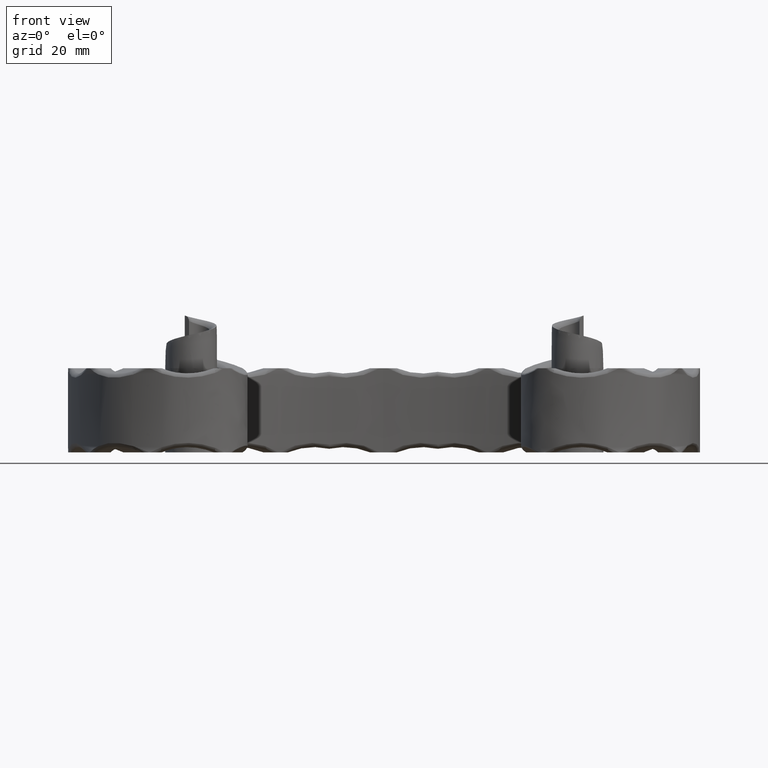
[diagram: clean part render]
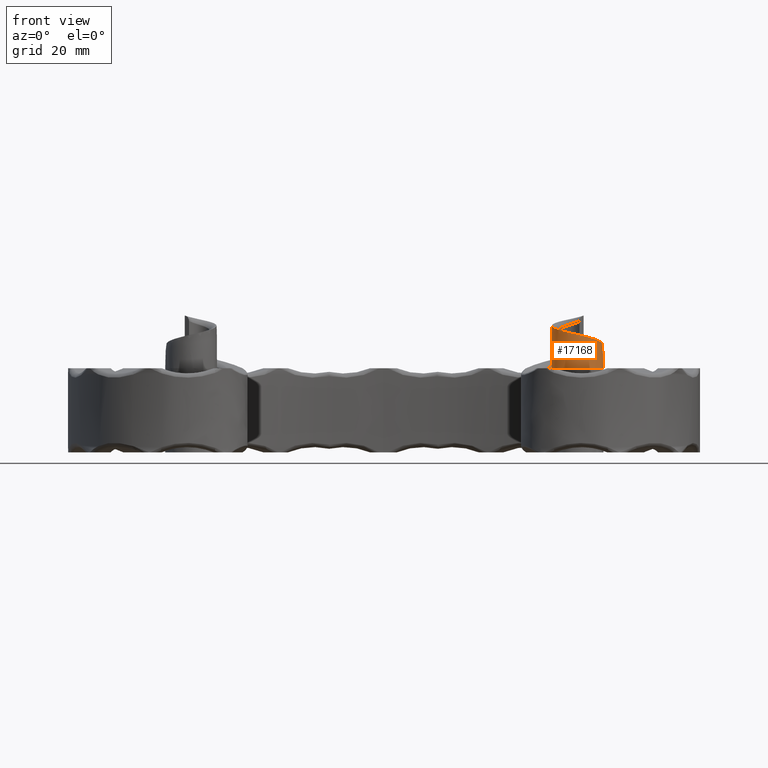
[diagram: same view with one face highlighted and labeled with its STEP entity id]
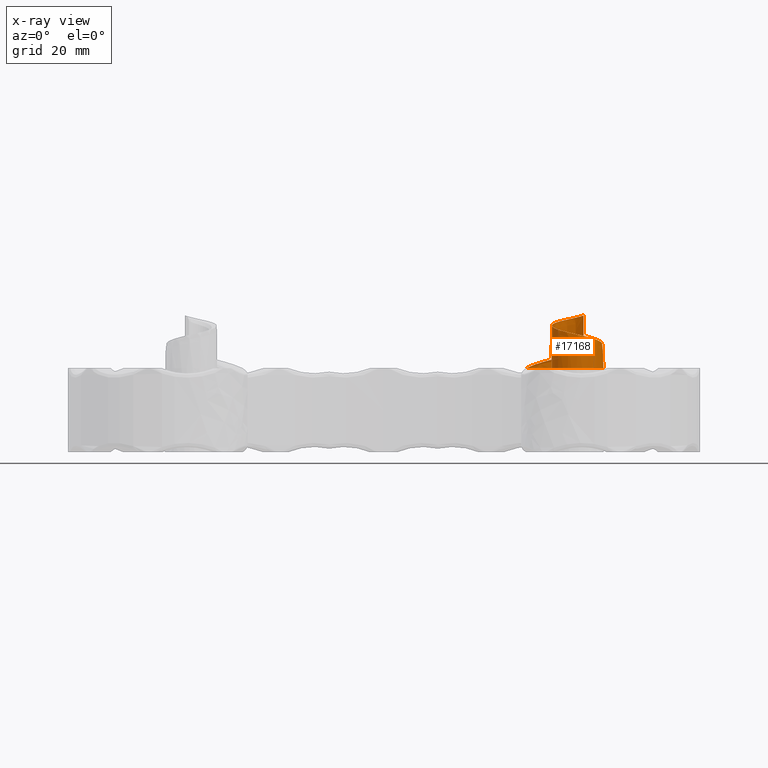
[diagram: x-ray of the same camera — body ghosted, the highlighted face saturated]
A machine part, front view. The second image highlights one B-rep face of the part: STEP entity #17168.
The next image is the same camera in x-ray: the body ghosted, the highlighted face saturated — about 0% of this face is hidden behind the body in this view.
In plain terms, the highlighted face is a freeform B-spline surface patch.
Its self-contained STEP definition (entity closure, byte-faithful):
#2 = CARTESIAN_POINT ( 'NONE',  ( 35.08338571330931188, 9.361912308673005612, 14.79703401360120019 ) ) ;
#37 = ORIENTED_EDGE ( 'NONE', *, *, #6318, .T. ) ;
#38 = CARTESIAN_POINT ( 'NONE',  ( 33.53326361170265102, 16.81836448005509865, 15.05141084870339085 ) ) ;
#71 = VERTEX_POINT ( 'NONE', #4347 ) ;
#88 = VERTEX_POINT ( 'NONE', #2761 ) ;
#96 = CARTESIAN_POINT ( 'NONE',  ( 31.89241797517525256, 19.64066577517394308, 8.925182704571252401 ) ) ;
#102 = ORIENTED_EDGE ( 'NONE', *, *, #14701, .T. ) ;
#151 = CARTESIAN_POINT ( 'NONE',  ( 35.03659190143020652, 9.290214304742839602, 13.38098526076762340 ) ) ;
#183 = ORIENTED_EDGE ( 'NONE', *, *, #219, .T. ) ;
#203 = CARTESIAN_POINT ( 'NONE',  ( 41.42273021691744361, 16.29495944605625013, 11.33208655198182768 ) ) ;
#219 = EDGE_CURVE ( 'NONE', #10041, #12473, #7536, .T. ) ;
#250 = CARTESIAN_POINT ( 'NONE',  ( 31.66522930896914545, 19.40292802263333272, 9.321689577958933270 ) ) ;
#268 = EDGE_CURVE ( 'NONE', #365, #7869, #816, .T. ) ;
#279 = CARTESIAN_POINT ( 'NONE',  ( 31.99197559261570589, 12.94257519161645043, 15.91731546048207413 ) ) ;
#294 = CARTESIAN_POINT ( 'NONE',  ( 33.35142831466144031, 16.70699040070127239, 8.000000000000000000 ) ) ;
#295 = CARTESIAN_POINT ( 'NONE',  ( 33.07387275937225724, 16.49526796854631527, 8.000000000000000000 ) ) ;
#311 = CARTESIAN_POINT ( 'NONE',  ( 38.13541298942570279, 9.355189447846322892, 12.82288735597096085 ) ) ;
#337 = CARTESIAN_POINT ( 'NONE',  ( 40.87464248484291574, 11.61762857110836045, 8.000000000000000000 ) ) ;
#365 = VERTEX_POINT ( 'NONE', #2195 ) ;
#375 = CARTESIAN_POINT ( 'NONE',  ( 37.97390204996124652, 15.99613950567479748, 16.33333333333334636 ) ) ;
#433 = CARTESIAN_POINT ( 'NONE',  ( 27.36464678270442974, 14.99213664463023044, 8.146657184335358792 ) ) ;
#494 = CARTESIAN_POINT ( 'NONE',  ( 29.69190289654750003, 18.01216528310628817, 8.944952991062262271 ) ) ;
#519 = CARTESIAN_POINT ( 'NONE',  ( 32.42714953492724561, 11.44477212936616439, 8.000000000000000000 ) ) ;
#550 = CARTESIAN_POINT ( 'NONE',  ( 32.01547539259457409, 14.78555293199101683, 15.46572901639121689 ) ) ;
#607 = CARTESIAN_POINT ( 'NONE',  ( 36.32872975326056775, 20.45870213158668705, 8.000000000000000000 ) ) ;
#609 = CARTESIAN_POINT ( 'NONE',  ( 36.46810478903601194, 17.12165539401308934, 16.78301176449674870 ) ) ;
#618 = CARTESIAN_POINT ( 'NONE',  ( 40.37507104391949042, 10.87643471015953800, 8.898465431740000042 ) ) ;
#674 = CARTESIAN_POINT ( 'NONE',  ( 34.84134290886826335, 17.27228637678357615, 16.44982916800579886 ) ) ;
#682 = CARTESIAN_POINT ( 'NONE',  ( 40.79481513320252617, 17.91666109643030680, 8.615268422892508937 ) ) ;
#731 = ORIENTED_EDGE ( 'NONE', *, *, #16411, .F. ) ;
#732 = CARTESIAN_POINT ( 'NONE',  ( 39.85591687164020414, 10.59123982357409588, 13.38912241721707908 ) ) ;
#741 = CARTESIAN_POINT ( 'NONE',  ( 34.91871664278654208, 17.31302493237965834, 9.536332576001056438 ) ) ;
#790 = CARTESIAN_POINT ( 'NONE',  ( 33.53530131378587242, 16.79229987412543679, 16.53591839579883782 ) ) ;
#803 = CARTESIAN_POINT ( 'NONE',  ( 28.48664397466802711, 17.26812991978243517, 8.088112516742041791 ) ) ;
#816 = B_SPLINE_CURVE_WITH_KNOTS ( 'NONE', 3,
 ( #11483, #14872, #9367, #16261 ),
 .UNSPECIFIED., .F., .F.,
 ( 4, 4 ),
 ( 0.000000000000000000, 0.0005389526434506739135 ),
 .UNSPECIFIED. ) ;
#850 = B_SPLINE_CURVE_WITH_KNOTS ( 'NONE', 3,
 ( #14322, #6121, #6603, #7986, #2155, #17212 ),
 .UNSPECIFIED., .F., .F.,
 ( 4, 1, 1, 4 ),
 ( 3.241789908285738998E-07, 0.02202865293385401421, 0.04257117474503917254, 0.04640324143405308993 ),
 .UNSPECIFIED. ) ;
#852 = CARTESIAN_POINT ( 'NONE',  ( 35.09285063133992111, 9.342535449591714780, 14.51382426303448447 ) ) ;
#862 = CARTESIAN_POINT ( 'NONE',  ( 35.73699333383559207, 9.046588046485608103, 9.093755484454906224 ) ) ;
#864 = CARTESIAN_POINT ( 'NONE',  ( 32.29944642381865094, 11.69307223228881476, 7.999999999999996447 ) ) ;
#907 = CARTESIAN_POINT ( 'NONE',  ( 32.03142933641450441, 14.78180183642268197, 15.98659383148827473 ) ) ;
#917 = CARTESIAN_POINT ( 'NONE',  ( 32.35970748783896767, 11.56914441846082475, 7.999999999999998224 ) ) ;
#930 = CARTESIAN_POINT ( 'NONE',  ( 34.13575132705074822, 20.36486401812444669, 8.680946825400571498 ) ) ;
#957 = CARTESIAN_POINT ( 'NONE',  ( 31.88766169636048176, 13.15592444703822572, 8.000000000000000000 ) ) ;
#963 = CARTESIAN_POINT ( 'NONE',  ( 37.97390204996124652, 15.99613950567479748, 17.79166666666667140 ) ) ;
#976 = CARTESIAN_POINT ( 'NONE',  ( 36.63302675802348318, 9.019031420700370560, 8.000000000000000000 ) ) ;
#988 = CARTESIAN_POINT ( 'NONE',  ( 40.51685324250303211, 18.20994017999430525, 10.15343948012378128 ) ) ;
#1025 = CARTESIAN_POINT ( 'NONE',  ( 41.01690117292832838, 12.26120828564408782, 13.04962571573053332 ) ) ;
#1033 = CARTESIAN_POINT ( 'NONE',  ( 32.66584235058205365, 19.92664543700094271, 8.000000000000001776 ) ) ;
#1047 = CARTESIAN_POINT ( 'NONE',  ( 40.52339170493273457, 11.13097435416162817, 11.14462901109001081 ) ) ;
#1065 = VERTEX_POINT ( 'NONE', #12828 ) ;
#1082 = CARTESIAN_POINT ( 'NONE',  ( 41.36065020782510970, 13.23177938085144234, 12.81953561776679607 ) ) ;
#1105 = CARTESIAN_POINT ( 'NONE',  ( 30.09021440970519379, 18.66160822301817390, 8.351610415278980071 ) ) ;
#1116 = CARTESIAN_POINT ( 'NONE',  ( 31.85679458933059038, 13.18401792171438913, 8.000000000000001776 ) ) ;
#1120 = CARTESIAN_POINT ( 'NONE',  ( 33.25569698747256808, 16.64140952357022485, 8.000000000000000000 ) ) ;
#1123 = B_SPLINE_CURVE_WITH_KNOTS ( 'NONE', 3,
 ( #16285, #17613, #6821, #3952 ),
 .UNSPECIFIED., .F., .F.,
 ( 4, 4 ),
 ( 0.1168552787899069384, 0.1168963182836251363 ),
 .UNSPECIFIED. ) ;
#1143 = VERTEX_POINT ( 'NONE', #10404 ) ;
#1146 = CARTESIAN_POINT ( 'NONE',  ( 32.39420747260962230, 15.63550440447431278, 16.53910466508203569 ) ) ;
#1152 = CARTESIAN_POINT ( 'NONE',  ( 32.63673303577050433, 19.91635116486574475, 8.000000000000000000 ) ) ;
#1163 = CARTESIAN_POINT ( 'NONE',  ( 36.34620689970633123, 9.021061342905639435, 8.000000000000000000 ) ) ;
#1167 = CARTESIAN_POINT ( 'NONE',  ( 34.19047768206259974, 17.13798820797348554, 13.28655983135225149 ) ) ;
#1176 = ORIENTED_EDGE ( 'NONE', *, *, #4621, .T. ) ;
#1204 = CARTESIAN_POINT ( 'NONE',  ( 34.84767562391946427, 17.26454967021090781, 17.21799545600632442 ) ) ;
#1227 = CARTESIAN_POINT ( 'NONE',  ( 36.47521514252908048, 17.12577425868262893, 15.58532834206537565 ) ) ;
#1261 = CARTESIAN_POINT ( 'NONE',  ( 33.51550969707035676, 20.20331489557647231, 8.000000000000000000 ) ) ;
#1265 = CARTESIAN_POINT ( 'NONE',  ( 29.77860970897077308, 17.93859956697135161, 9.032855594882009953 ) ) ;
#1283 = B_SPLINE_CURVE_WITH_KNOTS ( 'NONE', 3,
 ( #14725, #3674, #1120, #6587 ),
 .UNSPECIFIED., .F., .F.,
 ( 4, 4 ),
 ( 0.9722891837903993029, 0.9740085741135559028 ),
 .UNSPECIFIED. ) ;
#1286 = CARTESIAN_POINT ( 'NONE',  ( 37.35910532983131560, 16.65755900065172668, 14.53371385192892440 ) ) ;
#1301 = CARTESIAN_POINT ( 'NONE',  ( 33.31937215065241986, 10.41959643871274821, 15.26523269901707103 ) ) ;
#1316 = CARTESIAN_POINT ( 'NONE',  ( 41.26836980396365817, 16.29488421405580922, 12.20895143408229799 ) ) ;
#1334 = CARTESIAN_POINT ( 'NONE',  ( 41.68550969451528232, 15.13099993287588774, 10.96932863203328345 ) ) ;
#1368 = VERTEX_POINT ( 'NONE', #16608 ) ;
#1371 = CARTESIAN_POINT ( 'NONE',  ( 27.55203160227006265, 14.87871431903176855, 8.175988621202431972 ) ) ;
#1392 = CARTESIAN_POINT ( 'NONE',  ( 31.86993122187522332, 13.85636154841606604, 14.42843944146365409 ) ) ;
#1407 = CARTESIAN_POINT ( 'NONE',  ( 35.63024848433902747, 17.29346374842276290, 8.000000000000000000 ) ) ;
#1427 = CARTESIAN_POINT ( 'NONE',  ( 40.18887897962780187, 18.25415866292388500, 11.69161053735505007 ) ) ;
#1448 = CARTESIAN_POINT ( 'NONE',  ( 32.57053306790246694, 11.19633020090079434, 12.99496577001547237 ) ) ;
#1460 = CARTESIAN_POINT ( 'NONE',  ( 27.06743249904453208, 14.80211269505213778, 8.000000000000000000 ) ) ;
#1470 = ORIENTED_EDGE ( 'NONE', *, *, #12338, .F. ) ;
#1480 = CARTESIAN_POINT ( 'NONE',  ( 27.21820479421505112, 14.19139603677555961, 8.000000000000001776 ) ) ;
#1502 = CARTESIAN_POINT ( 'NONE',  ( 37.03460416460458760, 20.30236230498125849, 10.22479028917389243 ) ) ;
#1515 = ORIENTED_EDGE ( 'NONE', *, *, #10152, .T. ) ;
#1536 = CARTESIAN_POINT ( 'NONE',  ( 35.40208017362986936, 20.18820982475284964, 10.45435959774967039 ) ) ;
#1562 = CARTESIAN_POINT ( 'NONE',  ( 41.61275160121871863, 15.25599673440949999, 11.71166079004160920 ) ) ;
#1584 = B_SPLINE_CURVE_WITH_KNOTS ( 'NONE', 3,
 ( #6633, #9379, #6693, #16499 ),
 .UNSPECIFIED., .F., .F.,
 ( 4, 4 ),
 ( 0.3570345527041148270, 0.3632197306169728246 ),
 .UNSPECIFIED. ) ;
#1619 = CARTESIAN_POINT ( 'NONE',  ( 35.45048316916417974, 20.38409441347006990, 9.943034681551825571 ) ) ;
#1650 = CARTESIAN_POINT ( 'NONE',  ( 40.48719479894846529, 11.36952555236799434, 13.39079259044001802 ) ) ;
#1683 = CARTESIAN_POINT ( 'NONE',  ( 32.62721734921540673, 11.16344021892787630, 14.24370721251934313 ) ) ;
#1710 = CARTESIAN_POINT ( 'NONE',  ( 39.52686802611030004, 10.09945439671357548, 8.000000000000000000 ) ) ;
#1741 = CARTESIAN_POINT ( 'NONE',  ( 41.64010203743287519, 14.18262133628066124, 11.71110510802538940 ) ) ;
#1746 = VERTEX_POINT ( 'NONE', #2215 ) ;
#1779 = B_SPLINE_CURVE_WITH_KNOTS ( 'NONE', 3,
 ( #9026, #15977, #7594, #3480 ),
 .UNSPECIFIED., .F., .F.,
 ( 4, 4 ),
 ( 0.04640324143405318014, 0.04644576367027402480 ),
 .UNSPECIFIED. ) ;
#1799 = CARTESIAN_POINT ( 'NONE',  ( 38.31180844533815844, 19.81589736096870880, 10.81058361621486164 ) ) ;
#1825 = CARTESIAN_POINT ( 'NONE',  ( 32.95282559530772915, 16.43170560194026564, 10.91157608046328775 ) ) ;
#1864 = CARTESIAN_POINT ( 'NONE',  ( 36.93215145314282921, 20.24461918330037946, 10.51752585353887604 ) ) ;
#1895 = EDGE_CURVE ( 'NONE', #365, #1143, #16742, .T. ) ;
#1921 = CARTESIAN_POINT ( 'NONE',  ( 36.46901785555574804, 17.12285050792876007, 16.58339786075818623 ) ) ;
#1939 = B_SPLINE_CURVE_WITH_KNOTS ( 'NONE', 3,
 ( #5683, #337, #9745, #8377, #15202, #1710 ),
 .UNSPECIFIED., .F., .F.,
 ( 4, 1, 1, 4 ),
 ( 0.8927836215248888818, 0.8929086252330729057, 0.8984123592610701037, 0.9032327649092026789 ),
 .UNSPECIFIED. ) ;
#1950 = CARTESIAN_POINT ( 'NONE',  ( 32.42544274488977862, 11.44791688293580911, 8.000000000000000000 ) ) ;
#1982 = CARTESIAN_POINT ( 'NONE',  ( 32.91051188752653900, 16.32927856220198848, 16.00683422127402622 ) ) ;
#1989 = CARTESIAN_POINT ( 'NONE',  ( 27.06743249904453208, 14.80211269505213778, 8.000000000000000000 ) ) ;
#1992 = CARTESIAN_POINT ( 'NONE',  ( 40.91060247134337402, 11.61795283631181874, 8.000000000000001776 ) ) ;
#2010 = CARTESIAN_POINT ( 'NONE',  ( 40.88862426443391485, 11.64042751711501822, 8.000000000000000000 ) ) ;
#2046 = CARTESIAN_POINT ( 'NONE',  ( 34.13499531188492142, 9.753659227200682125, 14.44647336820457184 ) ) ;
#2055 = CARTESIAN_POINT ( 'NONE',  ( 39.55255661051153737, 10.07884535373771051, 8.000000000000000000 ) ) ;
#2089 = VERTEX_POINT ( 'NONE', #12277 ) ;
#2110 = CARTESIAN_POINT ( 'NONE',  ( 39.37688228933101442, 19.12149006189457268, 11.14216399323287554 ) ) ;
#2118 = CARTESIAN_POINT ( 'NONE',  ( 27.65154274546752333, 15.94390370928989675, 8.029331436867071403 ) ) ;
#2122 = ORIENTED_EDGE ( 'NONE', *, *, #10982, .T. ) ;
#2129 = CARTESIAN_POINT ( 'NONE',  ( 36.34620689970633123, 9.021061342905639435, 8.000000000000000000 ) ) ;
#2155 = CARTESIAN_POINT ( 'NONE',  ( 36.41101358910263031, 17.11643375555553703, 7.999999999999998224 ) ) ;
#2170 = CARTESIAN_POINT ( 'NONE',  ( 41.28828241798082388, 16.32827780102822146, 12.03357845766220713 ) ) ;
#2178 = CARTESIAN_POINT ( 'NONE',  ( 37.76870562366598705, 16.21879533559763331, 9.655332381740263870 ) ) ;
#2195 = CARTESIAN_POINT ( 'NONE',  ( 37.97390204996125362, 15.99613950567480281, 17.99918024901718638 ) ) ;
#2197 = EDGE_CURVE ( 'NONE', #7026, #7350, #6508, .T. ) ;
#2214 = CARTESIAN_POINT ( 'NONE',  ( 31.87291464715805844, 14.09972200145450216, 8.000000000000000000 ) ) ;
#2215 = CARTESIAN_POINT ( 'NONE',  ( 40.87894067952177579, 11.62461387647666200, 8.000000000000000000 ) ) ;
#2226 = CARTESIAN_POINT ( 'NONE',  ( 27.16078543679328661, 14.17008620345852599, 8.000000000000000000 ) ) ;
#2230 = CARTESIAN_POINT ( 'NONE',  ( 36.91800586604421852, 20.22302783180236219, 10.57607296641187311 ) ) ;
#2238 = CARTESIAN_POINT ( 'NONE',  ( 36.35285929067551791, 20.51916627093050849, 8.000000000000003553 ) ) ;
#2282 = CARTESIAN_POINT ( 'NONE',  ( 37.97390204996124652, 15.99613950567479748, 17.58333333333333925 ) ) ;
#2309 = CARTESIAN_POINT ( 'NONE',  ( 35.95724181745811165, 9.048822571675275483, 11.82814419559217356 ) ) ;
#2345 = CARTESIAN_POINT ( 'NONE',  ( 29.70252824759479182, 17.98199648282328056, 8.966928642017201412 ) ) ;
#2366 = CARTESIAN_POINT ( 'NONE',  ( 38.63970756343900348, 19.81088064105445667, 9.830147471023629180 ) ) ;
#2386 = CARTESIAN_POINT ( 'NONE',  ( 29.80807291844303464, 17.93737739744922521, 9.054831245836943765 ) ) ;
#2400 = CARTESIAN_POINT ( 'NONE',  ( 37.12982114433452807, 9.179259007903285195, 14.19842909112465001 ) ) ;
#2422 = CARTESIAN_POINT ( 'NONE',  ( 41.45396327886906818, 12.79644269779031340, 9.640692976261036051 ) ) ;
#2435 = CARTESIAN_POINT ( 'NONE',  ( 36.52518955415152391, 17.11630236133964189, 7.999999999999996447 ) ) ;
#2462 = CARTESIAN_POINT ( 'NONE',  ( 37.11983822718559622, 9.186083954086594616, 14.33031056114857726 ) ) ;
#2466 = ORIENTED_EDGE ( 'NONE', *, *, #7338, .T. ) ;
#2480 = EDGE_CURVE ( 'NONE', #14866, #7469, #6751, .T. ) ;
#2482 = CARTESIAN_POINT ( 'NONE',  ( 27.13191070321065013, 15.04800820813701989, 8.000000000000001776 ) ) ;
#2491 = CARTESIAN_POINT ( 'NONE',  ( 37.71779166480417445, 9.134552468310982221, 7.999999999999996447 ) ) ;
#2504 = EDGE_CURVE ( 'NONE', #1368, #71, #12090, .T. ) ;
#2521 = CARTESIAN_POINT ( 'NONE',  ( 36.09656222516326096, 9.163419484050564279, 14.56253290672943557 ) ) ;
#2543 = CARTESIAN_POINT ( 'NONE',  ( 32.54630657435721020, 11.21861039915449432, 12.37059504876353877 ) ) ;
#2577 = CARTESIAN_POINT ( 'NONE',  ( 34.13980975534941109, 9.782278434186665095, 14.88600564330941900 ) ) ;
#2593 = CARTESIAN_POINT ( 'NONE',  ( 38.08234066753634295, 9.301255509720778747, 12.06137882608080147 ) ) ;
#2612 = CARTESIAN_POINT ( 'NONE',  ( 34.13682679684043819, 9.791582651167823670, 15.03251640167770198 ) ) ;
#2630 = CARTESIAN_POINT ( 'NONE',  ( 36.46835748345253592, 17.11754463525214476, 17.38185347571242190 ) ) ;
#2652 = CARTESIAN_POINT ( 'NONE',  ( 28.11051276211230388, 16.63841297944239273, 8.352450066968190256 ) ) ;
#2670 = CARTESIAN_POINT ( 'NONE',  ( 35.63746359370711048, 17.29682115900703110, 17.39387339727365145 ) ) ;
#2684 = CARTESIAN_POINT ( 'NONE',  ( 32.66584235058205365, 19.92664543700094271, 8.000000000000001776 ) ) ;
#2686 = CARTESIAN_POINT ( 'NONE',  ( 36.94108276053242435, 20.13347910033863286, 10.81026141790386141 ) ) ;
#2707 = CARTESIAN_POINT ( 'NONE',  ( 35.65356530082390663, 17.31653245218247505, 14.26258226484910629 ) ) ;
#2761 = CARTESIAN_POINT ( 'NONE',  ( 33.07387275937225724, 16.49526796854631527, 8.000000000000000000 ) ) ;
#2763 = CARTESIAN_POINT ( 'NONE',  ( 32.90873296598654463, 16.35396714355819014, 14.91499319110029198 ) ) ;
#2815 = CARTESIAN_POINT ( 'NONE',  ( 37.04515409991570607, 9.051698023549482386, 12.22020704076572173 ) ) ;
#2860 = CARTESIAN_POINT ( 'NONE',  ( 31.84963395642942530, 13.65181385964487326, 8.000000000000000000 ) ) ;
#2872 = CARTESIAN_POINT ( 'NONE',  ( 32.19110841158383352, 12.03252186338816898, 14.42413497659378407 ) ) ;
#2918 = ORIENTED_EDGE ( 'NONE', *, *, #10809, .T. ) ;
#2928 = CARTESIAN_POINT ( 'NONE',  ( 40.30515544375079884, 18.33567870301851599, 11.07634211446254824 ) ) ;
#2959 = CARTESIAN_POINT ( 'NONE',  ( 34.93802340074413593, 17.31478703337025493, 7.999999999999998224 ) ) ;
#2983 = CARTESIAN_POINT ( 'NONE',  ( 32.00516637895015037, 14.79835805543949689, 14.94486420129415549 ) ) ;
#3038 = CARTESIAN_POINT ( 'NONE',  ( 36.06452981327682039, 9.077440642273950644, 13.19533855116080900 ) ) ;
#3075 = CARTESIAN_POINT ( 'NONE',  ( 36.62856717308267207, 9.018931714806027955, 8.000000000000000000 ) ) ;
#3102 = CARTESIAN_POINT ( 'NONE',  ( 35.63887766621670039, 17.31044897422851037, 15.82822783106139397 ) ) ;
#3156 = ORIENTED_EDGE ( 'NONE', *, *, #8431, .F. ) ;
#3164 = CARTESIAN_POINT ( 'NONE',  ( 37.76185436472546542, 16.22197482633817600, 16.89741155185392074 ) ) ;
#3219 = CARTESIAN_POINT ( 'NONE',  ( 31.89776449016638082, 13.83243375359739424, 15.44345619537896752 ) ) ;
#3264 = CARTESIAN_POINT ( 'NONE',  ( 34.22104347193585028, 17.15694864536692421, 11.02089133220128936 ) ) ;
#3276 = CARTESIAN_POINT ( 'NONE',  ( 35.09071626399195054, 9.321560411148203329, 14.23061451246777231 ) ) ;
#3333 = B_SPLINE_CURVE_WITH_KNOTS ( 'NONE', 3,
 ( #17084, #9050, #11942, #10525, #14795 ),
 .UNSPECIFIED., .F., .F.,
 ( 4, 1, 4 ),
 ( 0.9860161500880512131, 0.9889700796270624039, 0.9897618390238280828 ),
 .UNSPECIFIED. ) ;
#3334 = CARTESIAN_POINT ( 'NONE',  ( 36.30862010785118343, 20.46026804330637106, 8.000000000000001776 ) ) ;
#3335 = CARTESIAN_POINT ( 'NONE',  ( 41.07607272449678959, 12.24510315267709615, 12.61987033566836125 ) ) ;
#3348 = CARTESIAN_POINT ( 'NONE',  ( 37.97390204996124652, 15.99613950567479748, 9.666666666666669627 ) ) ;
#3364 = CARTESIAN_POINT ( 'NONE',  ( 40.87894067952177579, 11.62461387647666200, 8.000000000000000000 ) ) ;
#3377 = B_SPLINE_CURVE_WITH_KNOTS ( 'NONE', 3,
 ( #4958, #14348, #6205, #11565, #7587, #7652, #8959, #8837 ),
 .UNSPECIFIED., .F., .F.,
 ( 4, 1, 1, 1, 1, 4 ),
 ( 0.2483648043796996829, 0.2717368409225500159, 0.2951277822657462080, 0.3183169139783659229, 0.3414604295329503603, 0.3569998369623818557 ),
 .UNSPECIFIED. ) ;
#3398 = CARTESIAN_POINT ( 'NONE',  ( 31.89138062152438380, 13.83452619993014920, 15.27428673639308343 ) ) ;
#3407 = CARTESIAN_POINT ( 'NONE',  ( 37.72574653775747322, 20.26418745920412334, 8.468376902983974830 ) ) ;
#3459 = CARTESIAN_POINT ( 'NONE',  ( 31.65053465936614430, 19.29211620312755926, 9.453858535754822157 ) ) ;
#3468 = CARTESIAN_POINT ( 'NONE',  ( 37.97390204996124652, 15.99613950567479748, 11.33333333333333748 ) ) ;
#3480 = CARTESIAN_POINT ( 'NONE',  ( 36.35538942852933531, 17.13535362794641514, 8.000000000000000000 ) ) ;
#3507 = CARTESIAN_POINT ( 'NONE',  ( 40.89343967556560955, 11.64834978837699708, 8.000000000000000000 ) ) ;
#3518 = CARTESIAN_POINT ( 'NONE',  ( 28.91940088223779526, 17.56153653933792924, 8.000000000000000000 ) ) ;
#3522 = CARTESIAN_POINT ( 'NONE',  ( 38.28062690016696479, 19.75621447113424267, 11.00667084525310457 ) ) ;
#3533 = CARTESIAN_POINT ( 'NONE',  ( 37.37215605038507960, 16.64908584278883197, 9.633428462982232432 ) ) ;
#3544 = B_SPLINE_CURVE_WITH_KNOTS ( 'NONE', 3,
 ( #3518, #13025, #6422, #5059, #3583 ),
 .UNSPECIFIED., .F., .F.,
 ( 4, 1, 4 ),
 ( 0.7906425765586867493, 0.7913077015471751130, 0.8005401077483598193 ),
 .UNSPECIFIED. ) ;
#3551 = CARTESIAN_POINT ( 'NONE',  ( 27.01837952638588192, 14.29577951658986024, 8.000000000000000000 ) ) ;
#3583 = CARTESIAN_POINT ( 'NONE',  ( 30.37414478861261458, 18.77118742702023724, 8.000000000000000000 ) ) ;
#3585 = B_SPLINE_CURVE_WITH_KNOTS ( 'NONE', 3,
 ( #14251, #14130, #8739, #15518 ),
 .UNSPECIFIED., .F., .F.,
 ( 4, 4 ),
 ( 0.000000000000000000, 0.0007640069925819615183 ),
 .UNSPECIFIED. ) ;
#3587 = CARTESIAN_POINT ( 'NONE',  ( 41.53577311724186671, 14.25494955999968383, 12.49239039392546857 ) ) ;
#3596 = CARTESIAN_POINT ( 'NONE',  ( 32.05925125188122138, 12.22575848536325971, 9.284826995318748999 ) ) ;
#3626 = CARTESIAN_POINT ( 'NONE',  ( 28.22103054554102997, 16.25612078677251304, 8.528675100452286273 ) ) ;
#3638 = CARTESIAN_POINT ( 'NONE',  ( 41.06398460644935966, 12.25740883342397680, 12.72730918068390693 ) ) ;
#3659 = CARTESIAN_POINT ( 'NONE',  ( 36.63397551480989733, 9.019054694439381237, 8.000000000000000000 ) ) ;
#3661 = CARTESIAN_POINT ( 'NONE',  ( 39.72144928974692846, 10.22814758566006610, 9.874477362510289069 ) ) ;
#3674 = CARTESIAN_POINT ( 'NONE',  ( 33.16289792755218713, 16.57064183238680144, 8.000000000000000000 ) ) ;
#3695 = CARTESIAN_POINT ( 'NONE',  ( 34.84336721162621586, 17.26756210546859904, 16.83391231200605986 ) ) ;
#3716 = CARTESIAN_POINT ( 'NONE',  ( 31.90152955284322189, 13.00348092832951430, 12.61843401861454694 ) ) ;
#3751 = CARTESIAN_POINT ( 'NONE',  ( 34.84545096761330285, 17.26584225776606729, 17.02595388400619569 ) ) ;
#3762 = CARTESIAN_POINT ( 'NONE',  ( 30.41853126976951671, 18.80106850746711444, 7.999999999999998224 ) ) ;
#3764 = CARTESIAN_POINT ( 'NONE',  ( 35.62786913367640551, 17.29370888137680140, 7.999999999999998224 ) ) ;
#3776 = CARTESIAN_POINT ( 'NONE',  ( 33.17577940006778192, 10.41595772208086679, 12.23805240775996594 ) ) ;
#3786 = CARTESIAN_POINT ( 'NONE',  ( 32.02752223587846458, 15.00980431641184687, 8.000000000000000000 ) ) ;
#3808 = B_SPLINE_CURVE_WITH_KNOTS ( 'NONE', 3,
 ( #7033, #12467, #2860, #9880, #4278 ),
 .UNSPECIFIED., .F., .F.,
 ( 4, 1, 4 ),
 ( 0.9538411565272291170, 0.9566337969864757707, 0.9587036510003592582 ),
 .UNSPECIFIED. ) ;
#3811 = CARTESIAN_POINT ( 'NONE',  ( 40.48719479894846529, 11.36952555236799789, 13.39079259044001802 ) ) ;
#3830 = VERTEX_POINT ( 'NONE', #12982 ) ;
#3832 = CARTESIAN_POINT ( 'NONE',  ( 33.87934493139161418, 9.796676076654302179, 10.34417213389256673 ) ) ;
#3842 = CARTESIAN_POINT ( 'NONE',  ( 35.71588722058834975, 17.31719588352248351, 8.000000000000001776 ) ) ;
#3852 = CARTESIAN_POINT ( 'NONE',  ( 40.84229556142621220, 17.31009758042007363, 11.95603295088354834 ) ) ;
#3863 = EDGE_CURVE ( 'NONE', #12290, #11765, #3377, .T. ) ;
#3870 = CARTESIAN_POINT ( 'NONE',  ( 35.63746359370711048, 17.29682115900703110, 17.39387339727365145 ) ) ;
#3893 = CARTESIAN_POINT ( 'NONE',  ( 31.83422073434786270, 13.98398646024279657, 10.70671134377417388 ) ) ;
#3926 = CARTESIAN_POINT ( 'NONE',  ( 33.53890816683281173, 16.79119765167465061, 16.72148183918576692 ) ) ;
#3946 = CARTESIAN_POINT ( 'NONE',  ( 35.64261891380086666, 17.31222115141056506, 15.43681643950831450 ) ) ;
#3952 = CARTESIAN_POINT ( 'NONE',  ( 33.35142831466144031, 16.70699040070127239, 8.000000000000000000 ) ) ;
#3988 = CARTESIAN_POINT ( 'NONE',  ( 32.38968706576743273, 15.63381013305630773, 16.36120665122616558 ) ) ;
#4011 = CARTESIAN_POINT ( 'NONE',  ( 37.35534109397848113, 16.65858719276151945, 15.75878519916560450 ) ) ;
#4026 = CARTESIAN_POINT ( 'NONE',  ( 39.82655587126618713, 10.59226287986769677, 13.62343208753086188 ) ) ;
#4065 = CARTESIAN_POINT ( 'NONE',  ( 41.09717617002361578, 12.07656018918959440, 11.43804304049738718 ) ) ;
#4073 = CARTESIAN_POINT ( 'NONE',  ( 36.29856948031187613, 20.46101596274103329, 8.000000000000000000 ) ) ;
#4123 = CARTESIAN_POINT ( 'NONE',  ( 33.54431601736723678, 16.83634567557957240, 13.93803018838179675 ) ) ;
#4180 = CARTESIAN_POINT ( 'NONE',  ( 37.76425530539199826, 16.22168469707926519, 14.62132952696105193 ) ) ;
#4212 = ORIENTED_EDGE ( 'NONE', *, *, #10669, .F. ) ;
#4237 = CARTESIAN_POINT ( 'NONE',  ( 40.56401763357875012, 11.27382627863855369, 12.26771080076501619 ) ) ;
#4278 = CARTESIAN_POINT ( 'NONE',  ( 31.87291464715805844, 14.09972200145450216, 8.000000000000000000 ) ) ;
#4290 = CARTESIAN_POINT ( 'NONE',  ( 29.71208644983697766, 18.15648903894149768, 8.835074736287579000 ) ) ;
#4310 = B_SPLINE_CURVE_WITH_KNOTS ( 'NONE', 3,
 ( #7886, #11972, #12088, #1163 ),
 .UNSPECIFIED., .F., .F.,
 ( 4, 4 ),
 ( 0.3569998369623820222, 0.3570345527041148270 ),
 .UNSPECIFIED. ) ;
#4347 = CARTESIAN_POINT ( 'NONE',  ( 32.24477558625940077, 11.81902874311027496, 7.999999999999994671 ) ) ;
#4350 = CARTESIAN_POINT ( 'NONE',  ( 36.47239798793764010, 17.12524043701789012, 15.98455614954250059 ) ) ;
#4378 = CARTESIAN_POINT ( 'NONE',  ( 41.50783916083996417, 14.23282657719618527, 12.68771171540048925 ) ) ;
#4410 = CARTESIAN_POINT ( 'NONE',  ( 36.08599135559965987, 9.086737379218904564, 13.46877742227454000 ) ) ;
#4467 = CARTESIAN_POINT ( 'NONE',  ( 41.00064715925133640, 17.34028227390447441, 11.13185941944947643 ) ) ;
#4500 = CARTESIAN_POINT ( 'NONE',  ( 36.63112922883868094, 9.018989568050313821, 8.000000000000000000 ) ) ;
#4527 = CARTESIAN_POINT ( 'NONE',  ( 37.97390204996124652, 15.99613950567479748, 16.95833333333334636 ) ) ;
#4563 = CARTESIAN_POINT ( 'NONE',  ( 36.62600513092625931, 9.018875939999993818, 8.000000000000000000 ) ) ;
#4587 = CARTESIAN_POINT ( 'NONE',  ( 32.66048930443051290, 11.16451933903239180, 14.86807793377127851 ) ) ;
#4590 = VERTEX_POINT ( 'NONE', #3659 ) ;
#4621 = EDGE_CURVE ( 'NONE', #5528, #15976, #12826, .T. ) ;
#4651 = CARTESIAN_POINT ( 'NONE',  ( 33.53016332442555125, 16.79730738229897469, 16.16479150902497963 ) ) ;
#4658 = CARTESIAN_POINT ( 'NONE',  ( 27.03519368478866980, 14.67916600267329663, 8.000000000000000000 ) ) ;
#4689 = CARTESIAN_POINT ( 'NONE',  ( 38.68074632159958526, 9.513529951218409053, 8.000000000000005329 ) ) ;
#4709 = CARTESIAN_POINT ( 'NONE',  ( 37.35206448381175903, 16.65840981527876252, 16.77967798852950310 ) ) ;
#4716 = CARTESIAN_POINT ( 'NONE',  ( 38.77589555660585319, 9.562099688009805476, 8.976339085064488188 ) ) ;
#4725 = EDGE_CURVE ( 'NONE', #4590, #15170, #14312, .T. ) ;
#4758 = CARTESIAN_POINT ( 'NONE',  ( 40.92059622432011423, 11.69350656381785747, 8.000000000000000000 ) ) ;
#4764 = CARTESIAN_POINT ( 'NONE',  ( 35.08376547274982471, 9.312464310546737067, 14.08900963718441623 ) ) ;
#4774 = CARTESIAN_POINT ( 'NONE',  ( 41.76749693547579767, 14.56994715413237884, 8.000000000000000000 ) ) ;
#4783 = CARTESIAN_POINT ( 'NONE',  ( 36.35538942852933531, 17.13535362794641514, 8.000000000000000000 ) ) ;
#4822 = CARTESIAN_POINT ( 'NONE',  ( 41.32204548195655036, 16.34574019278789336, 11.85820548124211449 ) ) ;
#4832 = CARTESIAN_POINT ( 'NONE',  ( 32.35752838235922724, 19.91433251781252878, 8.264337915591790207 ) ) ;
#4877 = CARTESIAN_POINT ( 'NONE',  ( 41.68895706968076809, 15.64970801156423441, 8.000000000000000000 ) ) ;
#4884 = CARTESIAN_POINT ( 'NONE',  ( 37.76142770309827768, 16.22121305746271247, 17.72507774272404291 ) ) ;
#4892 = CARTESIAN_POINT ( 'NONE',  ( 41.37190223710371129, 12.54820966465960375, 7.999999999999996447 ) ) ;
#4894 = CARTESIAN_POINT ( 'NONE',  ( 32.42544274488977862, 11.44791688293580911, 8.000000000000000000 ) ) ;
#4940 = CARTESIAN_POINT ( 'NONE',  ( 40.51781019973560660, 11.37378483128395068, 13.16617623250501623 ) ) ;
#4949 = CARTESIAN_POINT ( 'NONE',  ( 41.68895706968076098, 15.64970801156422731, 8.000000000000000000 ) ) ;
#4958 = CARTESIAN_POINT ( 'NONE',  ( 32.42714953492724561, 11.44477212936616439, 8.000000000000000000 ) ) ;
#4999 = CARTESIAN_POINT ( 'NONE',  ( 32.67190199857927269, 11.17641589885248976, 15.18026329439724265 ) ) ;
#5022 = ORIENTED_EDGE ( 'NONE', *, *, #5800, .T. ) ;
#5026 = CARTESIAN_POINT ( 'NONE',  ( 31.84766980957590121, 13.91294511161780889, 12.73674485160479364 ) ) ;
#5043 = ORIENTED_EDGE ( 'NONE', *, *, #16214, .T. ) ;
#5057 = CARTESIAN_POINT ( 'NONE',  ( 36.32872975326056775, 20.45870213158668705, 8.000000000000000000 ) ) ;
#5059 = CARTESIAN_POINT ( 'NONE',  ( 29.88783317629026470, 18.44021901370297201, 8.000000000000000000 ) ) ;
#5061 = B_SPLINE_CURVE_WITH_KNOTS ( 'NONE', 3,
 ( #7082, #11406, #7135, #16661, #9872 ),
 .UNSPECIFIED., .F., .F.,
 ( 4, 1, 4 ),
 ( 0.9394850078702517981, 0.9457203797612132590, 1.000000000000000000 ),
 .UNSPECIFIED. ) ;
#5062 = CARTESIAN_POINT ( 'NONE',  ( 39.05842939220408283, 9.932571871319129997, 13.61394973912078754 ) ) ;
#5083 = CARTESIAN_POINT ( 'NONE',  ( 35.82555667043868652, 9.039199754113017349, 10.18751096890981600 ) ) ;
#5094 = CARTESIAN_POINT ( 'NONE',  ( 37.97390204996124652, 15.99613950567479748, 8.000000000000000000 ) ) ;
#5120 = CARTESIAN_POINT ( 'NONE',  ( 32.23716117099004208, 12.04293111102906266, 15.54835859749768723 ) ) ;
#5145 = CARTESIAN_POINT ( 'NONE',  ( 34.87077310630435534, 17.29846851838193444, 13.37716401600368954 ) ) ;
#5166 = CARTESIAN_POINT ( 'NONE',  ( 27.01239327275507307, 14.42323115744706996, 8.000000000000000000 ) ) ;
#5182 = CARTESIAN_POINT ( 'NONE',  ( 36.46906836727046652, 17.11635413739612233, 17.58146737945099147 ) ) ;
#5201 = EDGE_CURVE ( 'NONE', #5528, #1746, #16844, .T. ) ;
#5203 = CARTESIAN_POINT ( 'NONE',  ( 37.90967679961016046, 9.197242099131422322, 10.03068941304040251 ) ) ;
#5208 = CARTESIAN_POINT ( 'NONE',  ( 27.04778763323948709, 14.23944768616320111, 8.000000000000000000 ) ) ;
#5214 = CARTESIAN_POINT ( 'NONE',  ( 38.68074632159958526, 9.513529951218409053, 8.000000000000005329 ) ) ;
#5225 = CARTESIAN_POINT ( 'NONE',  ( 37.17719296981454846, 16.74630240243833157, 17.75740813561053955 ) ) ;
#5244 = CARTESIAN_POINT ( 'NONE',  ( 36.92743581417309429, 20.15297494630567243, 10.75171430503086079 ) ) ;
#5269 = CARTESIAN_POINT ( 'NONE',  ( 27.53307100857979961, 15.72208172277355587, 8.058662873734142806 ) ) ;
#5288 = ORIENTED_EDGE ( 'NONE', *, *, #8210, .F. ) ;
#5307 = CARTESIAN_POINT ( 'NONE',  ( 39.04482280371989589, 9.936985116515613115, 13.73599212475385123 ) ) ;
#5328 = CARTESIAN_POINT ( 'NONE',  ( 34.84917720524878604, 17.28536730032331903, 15.29757973600501408 ) ) ;
#5362 = CARTESIAN_POINT ( 'NONE',  ( 41.27671258421474931, 16.31198623148929272, 12.12126494587225345 ) ) ;
#5383 = CARTESIAN_POINT ( 'NONE',  ( 32.00235321381914133, 14.80939138149208745, 14.59762099122944434 ) ) ;
#5415 = CARTESIAN_POINT ( 'NONE',  ( 35.40210049504088374, 17.31628917029494730, 8.000000000000000000 ) ) ;
#5420 = CARTESIAN_POINT ( 'NONE',  ( 31.73640306669494393, 19.22713757286502556, 9.586027493550714595 ) ) ;
#5439 = CARTESIAN_POINT ( 'NONE',  ( 37.97390204996124652, 15.99613950567479748, 15.91666666666667673 ) ) ;
#5459 = CARTESIAN_POINT ( 'NONE',  ( 32.23957849440100887, 12.05006455289604439, 15.70896197191252242 ) ) ;
#5476 = CARTESIAN_POINT ( 'NONE',  ( 38.29279332947168513, 19.71161809674066490, 11.13739566461193320 ) ) ;
#5497 = CARTESIAN_POINT ( 'NONE',  ( 41.09114329431051971, 17.26647015699372645, 10.63735530058903223 ) ) ;
#5528 = VERTEX_POINT ( 'NONE', #3507 ) ;
#5549 = CARTESIAN_POINT ( 'NONE',  ( 34.97501401613065042, 9.282789483288672372, 12.53135600906746738 ) ) ;
#5584 = CARTESIAN_POINT ( 'NONE',  ( 39.35843603285162118, 19.03960729352720094, 11.42781526534495384 ) ) ;
#5605 = CARTESIAN_POINT ( 'NONE',  ( 39.89166298881958284, 10.51847694672120603, 12.68619340627572356 ) ) ;
#5636 = CARTESIAN_POINT ( 'NONE',  ( 41.50783916083996417, 14.23282657719618705, 12.68771171540048925 ) ) ;
#5654 = CARTESIAN_POINT ( 'NONE',  ( 31.94573164702685375, 12.93545238211003223, 14.59776288373507036 ) ) ;
#5678 = EDGE_CURVE ( 'NONE', #11011, #4590, #13065, .T. ) ;
#5683 = CARTESIAN_POINT ( 'NONE',  ( 40.87894067952177579, 11.62461387647666200, 8.000000000000000000 ) ) ;
#5707 = CARTESIAN_POINT ( 'NONE',  ( 38.42006209341886347, 19.84384779409777266, 10.48377156781778297 ) ) ;
#5768 = CARTESIAN_POINT ( 'NONE',  ( 39.07799981069864259, 9.858303872926736489, 12.88169542532242673 ) ) ;
#5770 = VERTEX_POINT ( 'NONE', #294 ) ;
#5800 = EDGE_CURVE ( 'NONE', #9740, #12552, #1779, .T. ) ;
#5828 = ORIENTED_EDGE ( 'NONE', *, *, #2197, .F. ) ;
#5829 = CARTESIAN_POINT ( 'NONE',  ( 31.69946545597740339, 19.44887983935456788, 9.255605099060984386 ) ) ;
#5892 = CARTESIAN_POINT ( 'NONE',  ( 36.10860654500883271, 9.111813492558479055, 13.87893572894512673 ) ) ;
#5913 = EDGE_CURVE ( 'NONE', #10165, #15100, #11829, .T. ) ;
#5952 = CARTESIAN_POINT ( 'NONE',  ( 34.16207687994776165, 17.10032352998647198, 16.30745116355353730 ) ) ;
#6009 = CARTESIAN_POINT ( 'NONE',  ( 27.40444853726311081, 14.90526898316466919, 8.157656473160511013 ) ) ;
#6019 = CARTESIAN_POINT ( 'NONE',  ( 30.46283926443998169, 18.93526596977337562, 7.999999999999998224 ) ) ;
#6069 = CARTESIAN_POINT ( 'NONE',  ( 37.14400144252734748, 9.134836181168877189, 13.67090321102894102 ) ) ;
#6080 = CARTESIAN_POINT ( 'NONE',  ( 27.79250668288822723, 16.15158122613409120, 8.000000000000000000 ) ) ;
#6121 = CARTESIAN_POINT ( 'NONE',  ( 37.76994026814284666, 16.21753140257155223, 8.000000000000000000 ) ) ;
#6134 = CARTESIAN_POINT ( 'NONE',  ( 34.16190521240411471, 17.10366117010000053, 16.11864545529096659 ) ) ;
#6142 = CARTESIAN_POINT ( 'NONE',  ( 34.53712384397962865, 20.44994893366897060, 7.999999999999996447 ) ) ;
#6145 = CARTESIAN_POINT ( 'NONE',  ( 36.63397551480989733, 9.019054694439381237, 8.000000000000000000 ) ) ;
#6191 = CARTESIAN_POINT ( 'NONE',  ( 38.29352654964768732, 19.79952820780933465, 10.87594602589427417 ) ) ;
#6198 = CARTESIAN_POINT ( 'NONE',  ( 37.76733516315861294, 16.21992983323683291, 11.31066476348052774 ) ) ;
#6205 = CARTESIAN_POINT ( 'NONE',  ( 32.98997807826334849, 10.57563255087382714, 8.000000000000007105 ) ) ;
#6226 = CARTESIAN_POINT ( 'NONE',  ( 36.65043093478158198, 9.019458358639834472, 7.999999999999998224 ) ) ;
#6248 = CARTESIAN_POINT ( 'NONE',  ( 41.40993614277521573, 13.23670996417042645, 12.51190568471785802 ) ) ;
#6259 = CARTESIAN_POINT ( 'NONE',  ( 33.81321441383763471, 9.835672166975490072, 9.172086066946285143 ) ) ;
#6312 = CARTESIAN_POINT ( 'NONE',  ( 31.98403051288841681, 12.93108554497383622, 15.58742731629532408 ) ) ;
#6318 = EDGE_CURVE ( 'NONE', #1368, #12290, #13540, .T. ) ;
#6343 = CARTESIAN_POINT ( 'NONE',  ( 27.09414018363311172, 14.17929621438854504, 8.000000000000000000 ) ) ;
#6357 = CARTESIAN_POINT ( 'NONE',  ( 33.64283953373616498, 19.88233258937103543, 10.04284047620172338 ) ) ;
#6366 = CARTESIAN_POINT ( 'NONE',  ( 40.16288149150233266, 18.69730892167835279, 8.000000000000000000 ) ) ;
#6370 = CARTESIAN_POINT ( 'NONE',  ( 35.35441566660413315, 20.27229489207716995, 10.24982963127053459 ) ) ;
#6395 = CARTESIAN_POINT ( 'NONE',  ( 41.68320879183133343, 14.01692728326180237, 10.73449850065028599 ) ) ;
#6422 = CARTESIAN_POINT ( 'NONE',  ( 29.39657420696029178, 18.03786847343533495, 8.000000000000000000 ) ) ;
#6425 = CARTESIAN_POINT ( 'NONE',  ( 40.88744489746520117, 17.37274261044467849, 11.62636353830992064 ) ) ;
#6433 = CARTESIAN_POINT ( 'NONE',  ( 31.11136782687918156, 19.25952699287709891, 8.000000000000000000 ) ) ;
#6447 = CARTESIAN_POINT ( 'NONE',  ( 37.36147002386643123, 16.65636679097826445, 13.71699962043781085 ) ) ;
#6459 = CARTESIAN_POINT ( 'NONE',  ( 31.83634914198475130, 14.08106646237112791, 8.000000000000001776 ) ) ;
#6483 = CARTESIAN_POINT ( 'NONE',  ( 41.49908508429450649, 15.26670179773064717, 12.36120142829888735 ) ) ;
#6508 = B_SPLINE_CURVE_WITH_KNOTS ( 'NONE', 3,
 ( #12994, #3551, #17127, #17186 ),
 .UNSPECIFIED., .F., .F.,
 ( 4, 4 ),
 ( 0.0001994995896938224272, 0.0003891581112610319800 ),
 .UNSPECIFIED. ) ;
#6509 = CARTESIAN_POINT ( 'NONE',  ( 33.55409526430692324, 16.84681212532815664, 13.19577641483407504 ) ) ;
#6519 = CARTESIAN_POINT ( 'NONE',  ( 32.98995921964444733, 10.57564974019629744, 8.000000000000007105 ) ) ;
#6549 = CARTESIAN_POINT ( 'NONE',  ( 35.08879583268083024, 9.352850164661449028, 14.65542913831784588 ) ) ;
#6572 = CARTESIAN_POINT ( 'NONE',  ( 41.62354989291057450, 15.94077489472613784, 9.402983811360767774 ) ) ;
#6587 = CARTESIAN_POINT ( 'NONE',  ( 33.35142831466144031, 16.70699040070127239, 8.000000000000000000 ) ) ;
#6591 = CARTESIAN_POINT ( 'NONE',  ( 37.11983822718561044, 9.186083954086596393, 14.33031056114857726 ) ) ;
#6603 = CARTESIAN_POINT ( 'NONE',  ( 37.37578993232951774, 16.64536261990342680, 8.000000000000003553 ) ) ;
#6612 = CARTESIAN_POINT ( 'NONE',  ( 38.13753706541042021, 9.454641113045058276, 13.96515015080618127 ) ) ;
#6633 = CARTESIAN_POINT ( 'NONE',  ( 36.34620689970633123, 9.021061342905639435, 8.000000000000000000 ) ) ;
#6637 = CARTESIAN_POINT ( 'NONE',  ( 39.82140169917320094, 10.36299329478180908, 11.28033538439300187 ) ) ;
#6674 = CARTESIAN_POINT ( 'NONE',  ( 32.23957849440100887, 12.05006455289605327, 15.70896197191252242 ) ) ;
#6693 = CARTESIAN_POINT ( 'NONE',  ( 36.53076944247725777, 9.016749498024454468, 8.000000000000000000 ) ) ;
#6695 = CARTESIAN_POINT ( 'NONE',  ( 29.86107830323363999, 18.40470495162904996, 8.615318226738216012 ) ) ;
#6751 = B_SPLINE_CURVE_WITH_KNOTS ( 'NONE', 3,
 ( #9134, #15793, #13207, #3764 ),
 .UNSPECIFIED., .F., .F.,
 ( 4, 4 ),
 ( 0.06321848909581943843, 0.06327216672833073374 ),
 .UNSPECIFIED. ) ;
#6752 = CARTESIAN_POINT ( 'NONE',  ( 32.14643731029726581, 12.07229508571438537, 13.13930798127501909 ) ) ;
#6762 = CARTESIAN_POINT ( 'NONE',  ( 36.26948778655721384, 20.46312749205302595, 8.000000000000000000 ) ) ;
#6814 = CARTESIAN_POINT ( 'NONE',  ( 41.49465981099445600, 16.20933963812282386, 10.80596762272153555 ) ) ;
#6821 = CARTESIAN_POINT ( 'NONE',  ( 33.35193558611019427, 16.70734222327769558, 8.000000000000001776 ) ) ;
#6836 = CARTESIAN_POINT ( 'NONE',  ( 32.39420747260962230, 15.63550440447430923, 16.53910466508203569 ) ) ;
#6848 = CARTESIAN_POINT ( 'NONE',  ( 33.73953841981573731, 16.94969265141281412, 7.999999999999998224 ) ) ;
#6875 = CARTESIAN_POINT ( 'NONE',  ( 31.93663929381966682, 12.94627802951736761, 14.26787473954832031 ) ) ;
#6884 = FACE_OUTER_BOUND ( 'NONE', #10837, .T. ) ;
#6934 = CARTESIAN_POINT ( 'NONE',  ( 34.18050160934773629, 17.13081265765225325, 14.04178266440257516 ) ) ;
#6969 = CARTESIAN_POINT ( 'NONE',  ( 33.64283953373616498, 19.88233258937103543, 10.04284047620172338 ) ) ;
#6991 = CARTESIAN_POINT ( 'NONE',  ( 27.01317477300032266, 14.35924743677314375, 8.000000000000001776 ) ) ;
#7026 = VERTEX_POINT ( 'NONE', #17285 ) ;
#7033 = CARTESIAN_POINT ( 'NONE',  ( 31.88766169636048176, 13.15592444703822572, 8.000000000000000000 ) ) ;
#7041 = CARTESIAN_POINT ( 'NONE',  ( 37.76251275990279765, 16.22212808795412897, 16.27666190870132468 ) ) ;
#7082 = CARTESIAN_POINT ( 'NONE',  ( 28.91940088223779526, 17.56153653933792924, 8.000000000000000000 ) ) ;
#7102 = CARTESIAN_POINT ( 'NONE',  ( 35.05803542423489461, 9.294275511610580409, 13.66419501133434089 ) ) ;
#7135 = CARTESIAN_POINT ( 'NONE',  ( 28.27273290690549246, 16.87173498990669174, 7.999999999999994671 ) ) ;
#7156 = CARTESIAN_POINT ( 'NONE',  ( 39.50391015765543301, 19.13727940288307039, 10.71368708506475542 ) ) ;
#7218 = CARTESIAN_POINT ( 'NONE',  ( 40.34444514950561000, 18.31843510315125201, 10.92252500873942012 ) ) ;
#7242 = ORIENTED_EDGE ( 'NONE', *, *, #7863, .F. ) ;
#7272 = CARTESIAN_POINT ( 'NONE',  ( 35.36281296623647563, 20.29793421766947503, 10.19869713965075242 ) ) ;
#7332 = CARTESIAN_POINT ( 'NONE',  ( 41.42471943539665347, 13.22628746400559407, 12.40936237370154238 ) ) ;
#7338 = EDGE_CURVE ( 'NONE', #88, #2089, #13178, .T. ) ;
#7341 = CARTESIAN_POINT ( 'NONE',  ( 27.01239327275507307, 14.42323115744706996, 8.000000000000000000 ) ) ;
#7350 = VERTEX_POINT ( 'NONE', #5166 ) ;
#7367 = CARTESIAN_POINT ( 'NONE',  ( 32.01755717515889188, 12.40878386226358465, 7.999999999999998224 ) ) ;
#7396 = CARTESIAN_POINT ( 'NONE',  ( 41.34262883088819507, 16.34421896032789689, 11.77051899303206461 ) ) ;
#7405 = CARTESIAN_POINT ( 'NONE',  ( 41.65803938525289851, 13.54314297711818327, 8.000000000000001776 ) ) ;
#7419 = EDGE_CURVE ( 'NONE', #1065, #7869, #9457, .T. ) ;
#7432 = CARTESIAN_POINT ( 'NONE',  ( 37.71779166480417445, 9.134552468310982221, 7.999999999999996447 ) ) ;
#7450 = CARTESIAN_POINT ( 'NONE',  ( 36.29856948031187613, 20.46101596274103329, 8.000000000000000000 ) ) ;
#7451 = CARTESIAN_POINT ( 'NONE',  ( 37.97390204996124652, 15.99613950567479748, 17.16666666666667851 ) ) ;
#7461 = CARTESIAN_POINT ( 'NONE',  ( 41.41946486260400206, 12.67003568255332802, 8.820346488130519802 ) ) ;
#7469 = VERTEX_POINT ( 'NONE', #13300 ) ;
#7509 = CARTESIAN_POINT ( 'NONE',  ( 41.03315106187741179, 12.26505992290430314, 12.94218687071499119 ) ) ;
#7520 = CARTESIAN_POINT ( 'NONE',  ( 27.36176223178632938, 15.50563100065444999, 8.000000000000001776 ) ) ;
#7536 = B_SPLINE_CURVE_WITH_KNOTS ( 'NONE', 3,
 ( #607, #11673, #3334, #7450 ),
 .UNSPECIFIED., .F., .F.,
 ( 4, 4 ),
 ( 0.7469882485150733942, 0.7476716018965674504 ),
 .UNSPECIFIED. ) ;
#7555 = CARTESIAN_POINT ( 'NONE',  ( 27.21820479421504757, 14.19139603677555783, 8.000000000000001776 ) ) ;
#7572 = CARTESIAN_POINT ( 'NONE',  ( 32.23343613955753284, 12.03595391940017478, 15.38775522308284316 ) ) ;
#7582 = CARTESIAN_POINT ( 'NONE',  ( 36.50482580890285789, 17.12391124991833991, 11.19382245981699597 ) ) ;
#7585 = CARTESIAN_POINT ( 'NONE',  ( 36.63207802631913523, 9.019008444149971382, 8.000000000000000000 ) ) ;
#7587 = CARTESIAN_POINT ( 'NONE',  ( 34.65621210502317950, 9.362347158138009107, 8.000000000000000000 ) ) ;
#7594 = CARTESIAN_POINT ( 'NONE',  ( 36.35598685291888188, 17.13515080298788007, 7.999999999999998224 ) ) ;
#7635 = CARTESIAN_POINT ( 'NONE',  ( 31.90979885277556960, 13.83530681759699554, 15.78179511335073215 ) ) ;
#7643 = CARTESIAN_POINT ( 'NONE',  ( 40.29623939787963849, 10.78777150736903323, 7.999999999999994671 ) ) ;
#7652 = CARTESIAN_POINT ( 'NONE',  ( 35.54177713429777441, 9.095791195222080461, 8.000000000000000000 ) ) ;
#7656 = B_SPLINE_CURVE_WITH_KNOTS ( 'NONE', 3,
 ( #7866, #9120, #2226, #10472 ),
 .UNSPECIFIED., .F., .F.,
 ( 4, 4 ),
 ( 0.000000000000000000, 9.008199242262837712E-05 ),
 .UNSPECIFIED. ) ;
#7678 = CARTESIAN_POINT ( 'NONE',  ( 41.26836980396365107, 16.29488421405581988, 12.20895143408229799 ) ) ;
#7695 = CARTESIAN_POINT ( 'NONE',  ( 33.59724893575840099, 19.91027475060924701, 9.957722123026652383 ) ) ;
#7741 = CARTESIAN_POINT ( 'NONE',  ( 31.73640306669494393, 19.22713757286502556, 9.586027493550714595 ) ) ;
#7749 = CARTESIAN_POINT ( 'NONE',  ( 41.65803938525289851, 13.54314297711818327, 8.000000000000001776 ) ) ;
#7754 = CARTESIAN_POINT ( 'NONE',  ( 28.10114292088424648, 16.27664120939049397, 8.484618842081260937 ) ) ;
#7779 = CARTESIAN_POINT ( 'NONE',  ( 41.53093625747233375, 16.14268051772149448, 10.45522166988134138 ) ) ;
#7800 = CARTESIAN_POINT ( 'NONE',  ( 40.92059622432011423, 11.69350656381785747, 8.000000000000000000 ) ) ;
#7810 = CARTESIAN_POINT ( 'NONE',  ( 27.52199440698921151, 14.86766447028998606, 8.172322191594046714 ) ) ;
#7825 = CARTESIAN_POINT ( 'NONE',  ( 32.24477558625940077, 11.81902874311027496, 7.999999999999994671 ) ) ;
#7833 = CARTESIAN_POINT ( 'NONE',  ( 32.66584235058205365, 19.92664543700094271, 8.000000000000001776 ) ) ;
#7835 = CARTESIAN_POINT ( 'NONE',  ( 31.87320844118669072, 13.07809704003586582, 10.63910515349402708 ) ) ;
#7863 = EDGE_CURVE ( 'NONE', #12433, #7026, #10576, .T. ) ;
#7866 = CARTESIAN_POINT ( 'NONE',  ( 27.21820479421504757, 14.19139603677555783, 8.000000000000001776 ) ) ;
#7869 = VERTEX_POINT ( 'NONE', #17434 ) ;
#7870 = CARTESIAN_POINT ( 'NONE',  ( 31.99197559261570589, 12.94257519161644687, 15.91731546048207413 ) ) ;
#7886 = CARTESIAN_POINT ( 'NONE',  ( 36.34465553477986077, 9.021118927476637239, 8.000000000000000000 ) ) ;
#7891 = CARTESIAN_POINT ( 'NONE',  ( 34.81120785133379769, 9.304416336195219017, 10.26567800453373813 ) ) ;
#7903 = CARTESIAN_POINT ( 'NONE',  ( 32.04206456273919201, 12.28227148785411238, 7.999999999999998224 ) ) ;
#7927 = CARTESIAN_POINT ( 'NONE',  ( 41.00223106611294810, 12.25506816440471169, 13.15706456074607189 ) ) ;
#7947 = EDGE_CURVE ( 'NONE', #16339, #5770, #1123, .T. ) ;
#7949 = CARTESIAN_POINT ( 'NONE',  ( 37.76506167014661486, 16.22127815151924324, 13.79366333609092266 ) ) ;
#7962 = CARTESIAN_POINT ( 'NONE',  ( 34.93880246829439784, 17.31495112861745156, 7.999999999999998224 ) ) ;
#7973 = CARTESIAN_POINT ( 'NONE',  ( 33.54246803248371833, 16.79072167812843475, 16.90704528257269246 ) ) ;
#7976 = EDGE_CURVE ( 'NONE', #15100, #12473, #9575, .T. ) ;
#7986 = CARTESIAN_POINT ( 'NONE',  ( 36.75144064470313054, 16.99103715711733287, 7.999999999999998224 ) ) ;
#7993 = CARTESIAN_POINT ( 'NONE',  ( 41.34667051307604169, 13.22268766960228881, 12.92207892878310993 ) ) ;
#8020 = CARTESIAN_POINT ( 'NONE',  ( 41.27576094744926394, 17.01607540204138047, 9.318677650294519665 ) ) ;
#8058 = CARTESIAN_POINT ( 'NONE',  ( 32.83215975023194488, 19.98479807641696837, 8.000000000000000000 ) ) ;
#8060 = CARTESIAN_POINT ( 'NONE',  ( 33.61946000118487632, 19.89409149570831659, 10.00028129961418877 ) ) ;
#8075 = CARTESIAN_POINT ( 'NONE',  ( 41.67383977708591658, 14.08584715330206372, 11.12514114360032735 ) ) ;
#8136 = CARTESIAN_POINT ( 'NONE',  ( 32.36745445709373570, 15.69074140211178658, 13.69273644338803209 ) ) ;
#8144 = CARTESIAN_POINT ( 'NONE',  ( 36.28402002344505206, 20.46209633878991951, 8.000000000000000000 ) ) ;
#8154 = CARTESIAN_POINT ( 'NONE',  ( 32.67539825258400299, 11.19291171930748341, 15.49244865502320501 ) ) ;
#8190 = CARTESIAN_POINT ( 'NONE',  ( 33.76426322700159943, 20.19210043636002894, 9.361893650801146549 ) ) ;
#8210 = EDGE_CURVE ( 'NONE', #7350, #12486, #11145, .T. ) ;
#8218 = CARTESIAN_POINT ( 'NONE',  ( 33.44604061384288940, 16.77133580896180831, 8.000000000000000000 ) ) ;
#8244 = CARTESIAN_POINT ( 'NONE',  ( 27.01083038066951048, 14.55118972243072939, 8.000000000000001776 ) ) ;
#8282 = CARTESIAN_POINT ( 'NONE',  ( 36.34465553477986077, 9.021118927476637239, 8.000000000000000000 ) ) ;
#8295 = CARTESIAN_POINT ( 'NONE',  ( 34.84508540034588009, 17.28196669438714750, 15.68166288000527686 ) ) ;
#8352 = CARTESIAN_POINT ( 'NONE',  ( 41.45499832823465880, 13.18676664636507923, 12.10173244065260079 ) ) ;
#8377 = CARTESIAN_POINT ( 'NONE',  ( 40.26427812031659670, 10.75329812921372508, 8.000000000000000000 ) ) ;
#8408 = ORIENTED_EDGE ( 'NONE', *, *, #2504, .F. ) ;
#8409 = CARTESIAN_POINT ( 'NONE',  ( 33.60585787046095874, 20.05757675687290131, 9.702367063501434075 ) ) ;
#8423 = ORIENTED_EDGE ( 'NONE', *, *, #15961, .F. ) ;
#8431 = EDGE_CURVE ( 'NONE', #1746, #15170, #1939, .T. ) ;
#8439 = CARTESIAN_POINT ( 'NONE',  ( 41.34667051307604169, 13.22268766960228525, 12.92207892878310993 ) ) ;
#8440 = ORIENTED_EDGE ( 'NONE', *, *, #7976, .F. ) ;
#8469 = CARTESIAN_POINT ( 'NONE',  ( 41.46271150863054800, 13.15315651952559506, 11.89664581861996595 ) ) ;
#8521 = CARTESIAN_POINT ( 'NONE',  ( 28.05827205811863223, 16.39540124909443009, 8.440562583710239153 ) ) ;
#8582 = CARTESIAN_POINT ( 'NONE',  ( 41.58752238634917120, 14.25090743315636743, 12.19940841171294288 ) ) ;
#8639 = CARTESIAN_POINT ( 'NONE',  ( 33.57623459715357228, 19.98527913676504753, 9.830044593264045005 ) ) ;
#8700 = CARTESIAN_POINT ( 'NONE',  ( 33.31031829348377471, 10.38579207848091102, 14.65979664076565747 ) ) ;
#8707 = CARTESIAN_POINT ( 'NONE',  ( 27.01083082185719064, 14.55119163862515208, 8.000000000000000000 ) ) ;
#8733 = CARTESIAN_POINT ( 'NONE',  ( 32.24477558625940077, 11.81902874311027496, 7.999999999999994671 ) ) ;
#8739 = CARTESIAN_POINT ( 'NONE',  ( 27.23530335389679990, 15.28394870604707201, 8.000000000000001776 ) ) ;
#8757 = CARTESIAN_POINT ( 'NONE',  ( 38.16317622990570158, 9.426263885459254865, 13.58439588586111135 ) ) ;
#8767 = CARTESIAN_POINT ( 'NONE',  ( 36.77014538314523406, 8.983319143849451294, 9.055051760191430432 ) ) ;
#8772 = CARTESIAN_POINT ( 'NONE',  ( 36.63112922883868094, 9.018989568050313821, 8.000000000000000000 ) ) ;
#8820 = CARTESIAN_POINT ( 'NONE',  ( 37.35144367719974667, 16.65804468840030239, 16.98385654640227571 ) ) ;
#8830 = CARTESIAN_POINT ( 'NONE',  ( 37.81530237534546757, 9.160787887861697953, 9.015344706520201257 ) ) ;
#8837 = CARTESIAN_POINT ( 'NONE',  ( 36.34465553477986077, 9.021118927476637239, 8.000000000000000000 ) ) ;
#8883 = CARTESIAN_POINT ( 'NONE',  ( 31.68367749332189831, 19.24777729154186190, 9.519943014652767488 ) ) ;
#8893 = CARTESIAN_POINT ( 'NONE',  ( 37.90181167682094809, 20.20227953416585009, 7.999999999999998224 ) ) ;
#8946 = CARTESIAN_POINT ( 'NONE',  ( 35.63479858640570086, 17.29992434601711793, 17.00246200572059507 ) ) ;
#8954 = CARTESIAN_POINT ( 'NONE',  ( 30.26946004425910530, 18.80843145060469368, 8.175805207639488259 ) ) ;
#8959 = CARTESIAN_POINT ( 'NONE',  ( 36.11319957814600912, 9.030085069878531101, 8.000000000000000000 ) ) ;
#8964 = ORIENTED_EDGE ( 'NONE', *, *, #3863, .T. ) ;
#9004 = CARTESIAN_POINT ( 'NONE',  ( 39.07758965030577514, 9.913249918812848449, 13.36986496785466905 ) ) ;
#9014 = CARTESIAN_POINT ( 'NONE',  ( 34.24335131318890291, 17.16635522119027613, 9.510445666100643791 ) ) ;
#9026 = CARTESIAN_POINT ( 'NONE',  ( 36.35718302867409335, 17.13474887386568568, 8.000000000000000000 ) ) ;
#9027 = CARTESIAN_POINT ( 'NONE',  ( 40.89343967556560955, 11.64834978837699708, 8.000000000000000000 ) ) ;
#9050 = CARTESIAN_POINT ( 'NONE',  ( 35.82588435298649898, 17.27323607328506228, 8.000000000000000000 ) ) ;
#9060 = CARTESIAN_POINT ( 'NONE',  ( 37.76143057745716902, 16.22145081187359139, 17.51816119500651681 ) ) ;
#9081 = CARTESIAN_POINT ( 'NONE',  ( 40.90255516044658890, 11.66335953141257775, 8.000000000000000000 ) ) ;
#9083 = CARTESIAN_POINT ( 'NONE',  ( 39.91717966182880417, 18.93035266078860346, 9.142605088448320316 ) ) ;
#9106 = CARTESIAN_POINT ( 'NONE',  ( 36.94108276053241013, 20.13347910033862931, 10.81026141790386141 ) ) ;
#9120 = CARTESIAN_POINT ( 'NONE',  ( 27.19071901996910157, 14.17877621170478619, 7.999999999999998224 ) ) ;
#9124 = CARTESIAN_POINT ( 'NONE',  ( 34.14130841410263173, 9.772128190096504241, 14.73949488494114135 ) ) ;
#9134 = CARTESIAN_POINT ( 'NONE',  ( 35.63024848433902747, 17.29346374842276290, 8.000000000000000000 ) ) ;
#9144 = CARTESIAN_POINT ( 'NONE',  ( 41.14136281304460852, 17.20515674935713690, 10.30768588801540275 ) ) ;
#9150 = ORIENTED_EDGE ( 'NONE', *, *, #2480, .T. ) ;
#9174 = CARTESIAN_POINT ( 'NONE',  ( 41.39963720037994221, 16.73021240741657323, 8.000000000000000000 ) ) ;
#9179 = CARTESIAN_POINT ( 'NONE',  ( 32.92614004062092192, 16.32489757770643024, 16.73472824138984194 ) ) ;
#9200 = CARTESIAN_POINT ( 'NONE',  ( 40.91160470615451317, 11.67841371647524973, 8.000000000000000000 ) ) ;
#9201 = CARTESIAN_POINT ( 'NONE',  ( 38.98363151671703264, 9.727066588572984784, 11.41718679772570155 ) ) ;
#9239 = CARTESIAN_POINT ( 'NONE',  ( 35.08338571330931188, 9.361912308673005612, 14.79703401360120019 ) ) ;
#9251 = ORIENTED_EDGE ( 'NONE', *, *, #13181, .T. ) ;
#9261 = B_SPLINE_CURVE_WITH_KNOTS ( 'NONE', 3,
 ( #4500, #3075, #4563, #14004 ),
 .UNSPECIFIED., .F., .F.,
 ( 4, 4 ),
 ( 0.9189018956006578254, 0.9189402106331987508 ),
 .UNSPECIFIED. ) ;
#9263 = CARTESIAN_POINT ( 'NONE',  ( 37.54378346507791520, 20.30724002786491766, 8.936753805967951436 ) ) ;
#9275 = CARTESIAN_POINT ( 'NONE',  ( 34.65621210502317950, 9.362347158138009107, 8.000000000000000000 ) ) ;
#9300 = CARTESIAN_POINT ( 'NONE',  ( 39.84091707211882749, 10.59296721716394352, 13.50627725237396604 ) ) ;
#9322 = CARTESIAN_POINT ( 'NONE',  ( 36.48881736243706797, 17.12630720850490107, 13.58918930467974739 ) ) ;
#9364 = CARTESIAN_POINT ( 'NONE',  ( 33.54246803248371833, 16.79072167812843475, 16.90704528257269246 ) ) ;
#9367 = CARTESIAN_POINT ( 'NONE',  ( 37.73267866096658452, 16.25133231374390519, 17.92279653655061722 ) ) ;
#9379 = CARTESIAN_POINT ( 'NONE',  ( 36.43833715166045550, 9.017524424033279473, 8.000000000000000000 ) ) ;
#9383 = CARTESIAN_POINT ( 'NONE',  ( 27.37689941986797848, 15.24599744617045971, 8.117325747468289165 ) ) ;
#9422 = CARTESIAN_POINT ( 'NONE',  ( 28.19028694953242820, 16.25024052186633128, 8.517661035859530827 ) ) ;
#9441 = CARTESIAN_POINT ( 'NONE',  ( 28.16250433984044932, 16.75190812800948592, 8.308393808597166696 ) ) ;
#9457 = B_SPLINE_CURVE_WITH_KNOTS ( 'NONE', 3,
 ( #7555, #10518, #3626, #2386, #7741, #6357, #14556, #9106, #11939, #11884, #14674, #3852, #7678, #16129, #4378, #8439, #16357, #1650, #4026, #13600, #17511, #6591, #13544, #2, #2612, #1301, #8154, #5459, #279, #14966, #10759, #6836, #10821, #7973, #14853, #16241, #2670, #9804, #5225, #11160, #14732 ),
 .UNSPECIFIED., .F., .F.,
 ( 4, 1, 1, 1, 1, 1, 1, 1, 1, 1, 1, 1, 1, 1, 1, 1, 1, 1, 1, 1, 1, 1, 1, 1, 1, 1, 1, 1, 1, 1, 1, 1, 1, 1, 1, 1, 1, 1, 4 ),
 ( 0.000000000000000000, 0.05427962023878674103, 0.1087779881803679904, 0.1634385222164235207, 0.2185741464706731918, 0.2541308172446453684, 0.2884437227676578397, 0.3223579958140884161, 0.3481412264121174216, 0.3739793627578309465, 0.3998650552554062765, 0.4259076612834109543, 0.4490836421128098221, 0.4724035675667722645, 0.4957777450311590117, 0.5192020056818337226, 0.5427728231669288750, 0.5663590359018794151, 0.5896651876663761005, 0.6126824079910733190, 0.6354479438034217331, 0.6585395704670495842, 0.6816830860216340771, 0.7048722177342537920, 0.7282631590774499841, 0.7516369275129552996, 0.7725895302331818870, 0.7936966348565472895, 0.8148191631173249405, 0.8351688935366994304, 0.8554519960893506303, 0.8753981426355590401, 0.8906286109893900571, 0.9060309169582615452, 0.9214532823401058170, 0.9367813143237551099, 0.9574288252549608691, 0.9779713470661459684, 0.9875461287463643822 ),
 .UNSPECIFIED. ) ;
#9500 = CARTESIAN_POINT ( 'NONE',  ( 33.20691892545085011, 10.39805666955633789, 12.84348846601138483 ) ) ;
#9560 = CARTESIAN_POINT ( 'NONE',  ( 39.62585794669186612, 19.10204286963981346, 10.28521017689663886 ) ) ;
#9575 = B_SPLINE_CURVE_WITH_KNOTS ( 'NONE', 3,
 ( #14661, #6762, #8144, #4073 ),
 .UNSPECIFIED., .F., .F.,
 ( 4, 4 ),
 ( 0.8332537424162583806, 0.8334730699940066101 ),
 .UNSPECIFIED. ) ;
#9600 = ORIENTED_EDGE ( 'NONE', *, *, #5913, .F. ) ;
#9615 = CARTESIAN_POINT ( 'NONE',  ( 40.54669144141242754, 11.18662864475620111, 11.59386172696001260 ) ) ;
#9653 = CARTESIAN_POINT ( 'NONE',  ( 34.89890891049446253, 17.30898094153667444, 11.07266515200211288 ) ) ;
#9666 = CARTESIAN_POINT ( 'NONE',  ( 39.88281864414818756, 10.49009014137377171, 12.45188373596193898 ) ) ;
#9724 = CARTESIAN_POINT ( 'NONE',  ( 41.62597148869003405, 14.21580013498659767, 11.90642642950041008 ) ) ;
#9740 = VERTEX_POINT ( 'NONE', #11262 ) ;
#9745 = CARTESIAN_POINT ( 'NONE',  ( 40.68063605994022680, 11.30335964990973885, 8.000000000000000000 ) ) ;
#9746 = CARTESIAN_POINT ( 'NONE',  ( 36.25497298850520878, 20.46411827295121455, 8.000000000000000000 ) ) ;
#9772 = CARTESIAN_POINT ( 'NONE',  ( 39.06447015298282111, 9.833597785316086970, 12.63761065405630468 ) ) ;
#9785 = ORIENTED_EDGE ( 'NONE', *, *, #10881, .F. ) ;
#9804 = CARTESIAN_POINT ( 'NONE',  ( 36.46906836727046652, 17.11635413739612233, 17.58146737945099147 ) ) ;
#9835 = CARTESIAN_POINT ( 'NONE',  ( 28.06871524090085757, 16.45927919714720744, 8.418534454524726485 ) ) ;
#9872 = CARTESIAN_POINT ( 'NONE',  ( 27.36176223178569344, 15.50563100065333444, 8.000000000000000000 ) ) ;
#9874 = ORIENTED_EDGE ( 'NONE', *, *, #1895, .T. ) ;
#9880 = CARTESIAN_POINT ( 'NONE',  ( 31.86138036378039473, 13.96594738051159190, 8.000000000000000000 ) ) ;
#9894 = CARTESIAN_POINT ( 'NONE',  ( 41.63329134730881975, 15.22442889833949664, 11.52607775053952466 ) ) ;
#9906 = ORIENTED_EDGE ( 'NONE', *, *, #7947, .T. ) ;
#9957 = CARTESIAN_POINT ( 'NONE',  ( 34.12682396940827090, 9.746910484601134073, 14.29996260983628531 ) ) ;
#10011 = CARTESIAN_POINT ( 'NONE',  ( 37.76164266859736784, 16.22185031744130157, 17.10432809957145395 ) ) ;
#10041 = VERTEX_POINT ( 'NONE', #12737 ) ;
#10068 = CARTESIAN_POINT ( 'NONE',  ( 40.24321412443232759, 18.33477412284099017, 11.30706777304724042 ) ) ;
#10123 = CARTESIAN_POINT ( 'NONE',  ( 32.90847917904370235, 16.33332741214319128, 15.82486071624507318 ) ) ;
#10129 = CARTESIAN_POINT ( 'NONE',  ( 30.37414478861261458, 18.77118742702023724, 8.000000000000000000 ) ) ;
#10132 = CARTESIAN_POINT ( 'NONE',  ( 40.16288149150233977, 18.69730892167835279, 8.000000000000000000 ) ) ;
#10152 = EDGE_CURVE ( 'NONE', #11765, #17632, #4310, .T. ) ;
#10165 = VERTEX_POINT ( 'NONE', #7833 ) ;
#10172 = CARTESIAN_POINT ( 'NONE',  ( 32.42930899014670842, 15.82771409045001576, 8.000000000000000000 ) ) ;
#10190 = CARTESIAN_POINT ( 'NONE',  ( 32.02043813538773520, 14.78222995941691309, 15.63935062142356536 ) ) ;
#10199 = CARTESIAN_POINT ( 'NONE',  ( 40.04631665523557871, 18.82022400094195547, 8.571302544224161934 ) ) ;
#10247 = CARTESIAN_POINT ( 'NONE',  ( 28.15742817024210254, 16.24940822097376980, 8.506646971266777157 ) ) ;
#10256 = CARTESIAN_POINT ( 'NONE',  ( 41.34532536731153840, 16.87628702152308691, 8.659338825147260721 ) ) ;
#10259 = EDGE_CURVE ( 'NONE', #17632, #10927, #1584, .T. ) ;
#10304 = CARTESIAN_POINT ( 'NONE',  ( 36.11102148024232861, 9.145391361634725769, 14.28909403561571345 ) ) ;
#10313 = CARTESIAN_POINT ( 'NONE',  ( 31.83271606832722966, 14.03262902808380730, 9.353355671887088718 ) ) ;
#10361 = CARTESIAN_POINT ( 'NONE',  ( 34.16556483975844571, 17.09525218647260303, 16.68506258007869647 ) ) ;
#10372 = CARTESIAN_POINT ( 'NONE',  ( 32.40823801167768892, 15.79626019122613201, 9.423184110847008910 ) ) ;
#10404 = CARTESIAN_POINT ( 'NONE',  ( 37.97389304557335521, 15.99614927955741628, 8.000000000000000000 ) ) ;
#10418 = CARTESIAN_POINT ( 'NONE',  ( 29.74829270326867814, 17.94490685671319241, 9.010879943927069036 ) ) ;
#10440 = CARTESIAN_POINT ( 'NONE',  ( 32.37240322420634442, 15.70934794470752571, 12.98114438796452497 ) ) ;
#10470 = CARTESIAN_POINT ( 'NONE',  ( 36.34519707543620370, 20.45739052290185356, 8.000000000000001776 ) ) ;
#10472 = CARTESIAN_POINT ( 'NONE',  ( 27.13068943568914904, 14.17424032367618381, 8.000000000000001776 ) ) ;
#10474 = CARTESIAN_POINT ( 'NONE',  ( 41.54777370347332521, 15.29027874929830944, 12.08282686904577119 ) ) ;
#10499 = CARTESIAN_POINT ( 'NONE',  ( 32.48001296908358881, 11.28851366315205240, 10.49748288500773619 ) ) ;
#10505 = CARTESIAN_POINT ( 'NONE',  ( 27.13068943568914904, 14.17424032367618381, 8.000000000000001776 ) ) ;
#10518 = CARTESIAN_POINT ( 'NONE',  ( 27.55203160227006265, 14.87871431903176678, 8.175988621202431972 ) ) ;
#10525 = CARTESIAN_POINT ( 'NONE',  ( 36.30611677687023331, 17.15195194795553135, 8.000000000000000000 ) ) ;
#10535 = CARTESIAN_POINT ( 'NONE',  ( 40.19017565628434596, 18.27486761253540948, 11.61470198449348779 ) ) ;
#10557 = CARTESIAN_POINT ( 'NONE',  ( 36.99989077107083091, 9.035043739493564985, 11.69268116067000740 ) ) ;
#10576 = B_SPLINE_CURVE_WITH_KNOTS ( 'NONE', 3,
 ( #10505, #6343, #15870, #5208 ),
 .UNSPECIFIED., .F., .F.,
 ( 4, 4 ),
 ( 9.007481093524846846E-05, 0.0001994995896938219122 ),
 .UNSPECIFIED. ) ;
#10580 = DIRECTION ( 'NONE',  ( 1.694043115214179447E-18, 6.212013110395919179E-21, -1.000000000000000000 ) ) ;
#10594 = CARTESIAN_POINT ( 'NONE',  ( 31.91870491492030482, 13.84429769599976900, 16.12013403132250033 ) ) ;
#10612 = CARTESIAN_POINT ( 'NONE',  ( 41.75836689502627053, 14.85534073070521721, 9.484664316016647945 ) ) ;
#10623 = CARTESIAN_POINT ( 'NONE',  ( 36.67533069310277227, 8.981206157813087287, 7.999999999999998224 ) ) ;
#10647 = CARTESIAN_POINT ( 'NONE',  ( 32.67539825258400299, 11.19291171930747453, 15.49244865502320501 ) ) ;
#10669 = EDGE_CURVE ( 'NONE', #1065, #12433, #7656, .T. ) ;
#10672 = CARTESIAN_POINT ( 'NONE',  ( 32.92522654759381595, 16.39150910354783264, 13.09525814081074913 ) ) ;
#10695 = EDGE_CURVE ( 'NONE', #12741, #11401, #3544, .T. ) ;
#10714 = CARTESIAN_POINT ( 'NONE',  ( 37.35091354245763284, 16.65551951045367574, 17.80057077789338749 ) ) ;
#10741 = CARTESIAN_POINT ( 'NONE',  ( 27.41045963925882134, 15.36915259136864442, 8.102660029034751688 ) ) ;
#10759 = CARTESIAN_POINT ( 'NONE',  ( 32.04121053314549528, 14.78736138784321597, 16.33383704155297522 ) ) ;
#10773 = CARTESIAN_POINT ( 'NONE',  ( 35.73949251902938329, 20.49900284874840395, 8.000000000000000000 ) ) ;
#10776 = CARTESIAN_POINT ( 'NONE',  ( 40.50195128540155309, 11.37285747715613660, 13.27848441147252068 ) ) ;
#10799 = CARTESIAN_POINT ( 'NONE',  ( 34.86142824996243661, 17.29422913790098093, 14.14533030400421865 ) ) ;
#10809 = EDGE_CURVE ( 'NONE', #7469, #16339, #13334, .T. ) ;
#10821 = CARTESIAN_POINT ( 'NONE',  ( 32.92614004062092192, 16.32489757770643024, 16.73472824138984194 ) ) ;
#10837 = EDGE_LOOP ( 'NONE', ( #9874, #17499, #5022, #8423, #9150, #2918, #9906, #1470, #2466, #731, #2122, #8408, #37, #8964, #1515, #17535, #9785, #14675, #14349, #3156, #11652, #1176, #9251, #183, #8440, #9600, #5043, #16067, #102, #17323, #5288, #5828, #7242, #4212, #16692, #17638 ) ) ;
#10854 = CARTESIAN_POINT ( 'NONE',  ( 38.55270744789815751, 19.83480740726593083, 10.09159710974128821 ) ) ;
#10881 = EDGE_CURVE ( 'NONE', #11011, #10927, #9261, .T. ) ;
#10908 = CARTESIAN_POINT ( 'NONE',  ( 32.91675699228928664, 16.37716446939140624, 13.82315216092656485 ) ) ;
#10922 = CARTESIAN_POINT ( 'NONE',  ( 27.13068943568914904, 14.17424032367618381, 8.000000000000001776 ) ) ;
#10927 = VERTEX_POINT ( 'NONE', #15271 ) ;
#10965 = CARTESIAN_POINT ( 'NONE',  ( 37.76297169445768986, 16.22203531236648644, 15.86282881326625471 ) ) ;
#10982 = EDGE_CURVE ( 'NONE', #15018, #71, #14829, .T. ) ;
#11011 = VERTEX_POINT ( 'NONE', #15454 ) ;
#11020 = CARTESIAN_POINT ( 'NONE',  ( 41.09921561463304585, 12.16999626910962817, 12.08267611059064706 ) ) ;
#11073 = B_SPLINE_CURVE_WITH_KNOTS ( 'NONE', 3,
 ( #4758, #17335, #11947, #7749, #15834, #4877, #9174, #15890, #6366, #11841, #13139, #17276, #10470, #5057 ),
 .UNSPECIFIED., .F., .F.,
 ( 4, 1, 1, 1, 1, 1, 1, 1, 1, 1, 1, 4 ),
 ( 0.4823026594932434130, 0.5042222549688409883, 0.5275964324332277355, 0.5509163578871901779, 0.5740923387165890457, 0.6001349447445937235, 0.6260206372421690535, 0.6518587735878825784, 0.6776420041859115839, 0.7115562772323421603, 0.7458691827553546316, 0.7469882485150687312 ),
 .UNSPECIFIED. ) ;
#11076 = CARTESIAN_POINT ( 'NONE',  ( 40.96713211818334344, 17.36405885336751709, 11.29669412573629117 ) ) ;
#11128 = CARTESIAN_POINT ( 'NONE',  ( 37.35399525166797474, 16.65885926055398158, 16.16714231491116394 ) ) ;
#11145 = B_SPLINE_CURVE_WITH_KNOTS ( 'NONE', 3,
 ( #7341, #8707, #4658, #1989 ),
 .UNSPECIFIED., .F., .F.,
 ( 4, 4 ),
 ( 0.0003891581112610319800, 0.0007783100728095817622 ),
 .UNSPECIFIED. ) ;
#11160 = CARTESIAN_POINT ( 'NONE',  ( 37.50557086298002218, 16.46459653645260346, 17.85372086367719291 ) ) ;
#11190 = CARTESIAN_POINT ( 'NONE',  ( 37.10563167458060008, 9.089019217665159189, 13.01149586090929233 ) ) ;
#11253 = CARTESIAN_POINT ( 'NONE',  ( 27.36454958034467921, 15.05831893394288024, 8.139324325118591830 ) ) ;
#11262 = CARTESIAN_POINT ( 'NONE',  ( 36.35718302867409335, 17.13474887386568568, 8.000000000000000000 ) ) ;
#11312 = CARTESIAN_POINT ( 'NONE',  ( 31.64780904980970533, 19.32205000610925438, 9.420816296305851267 ) ) ;
#11371 = CARTESIAN_POINT ( 'NONE',  ( 28.08284835832034787, 16.30524157192372670, 8.473604777488507267 ) ) ;
#11392 = CARTESIAN_POINT ( 'NONE',  ( 40.89343967556560955, 11.64834978837699708, 8.000000000000000000 ) ) ;
#11401 = VERTEX_POINT ( 'NONE', #10129 ) ;
#11406 = CARTESIAN_POINT ( 'NONE',  ( 28.85803408595855402, 17.49800069557292659, 7.999999999999994671 ) ) ;
#11428 = CARTESIAN_POINT ( 'NONE',  ( 31.97150532634136155, 12.92564151522394233, 15.25753917210857402 ) ) ;
#11483 = CARTESIAN_POINT ( 'NONE',  ( 37.97390204996125362, 15.99613950567480281, 17.99918024901718638 ) ) ;
#11485 = CARTESIAN_POINT ( 'NONE',  ( 27.06593074268880272, 14.20669033013284555, 8.000000000000001776 ) ) ;
#11496 = CARTESIAN_POINT ( 'NONE',  ( 40.88117443868073053, 17.77873999928688775, 8.000000000000000000 ) ) ;
#11550 = CARTESIAN_POINT ( 'NONE',  ( 39.39724889645816575, 19.13307066661193545, 11.07075117520485463 ) ) ;
#11558 = CARTESIAN_POINT ( 'NONE',  ( 39.04558749049885336, 19.63951326301306821, 8.522899277435321608 ) ) ;
#11565 = CARTESIAN_POINT ( 'NONE',  ( 33.75168820658362279, 9.881346235918034182, 8.000000000000000000 ) ) ;
#11609 = CARTESIAN_POINT ( 'NONE',  ( 37.35081328303810722, 16.65617590028478645, 17.59639222002061132 ) ) ;
#11620 = CARTESIAN_POINT ( 'NONE',  ( 27.23483180660748459, 15.28312208409014161, 8.000000000000001776 ) ) ;
#11652 = ORIENTED_EDGE ( 'NONE', *, *, #5201, .F. ) ;
#11673 = CARTESIAN_POINT ( 'NONE',  ( 36.31867334381993828, 20.45949423685427604, 8.000000000000001776 ) ) ;
#11674 = CARTESIAN_POINT ( 'NONE',  ( 41.57038433454445681, 14.25891391538428543, 12.29706907245044789 ) ) ;
#11681 = CARTESIAN_POINT ( 'NONE',  ( 39.19215687674991244, 19.53952532132195685, 8.000000000000000000 ) ) ;
#11727 = CARTESIAN_POINT ( 'NONE',  ( 38.14925207171608434, 9.447890045733807085, 13.83823206249115501 ) ) ;
#11737 = CARTESIAN_POINT ( 'NONE',  ( 35.70037627567085536, 17.31962625176560167, 9.565645566212277018 ) ) ;
#11749 = CARTESIAN_POINT ( 'NONE',  ( 40.92059622432011423, 11.69350656381785747, 8.000000000000000000 ) ) ;
#11765 = VERTEX_POINT ( 'NONE', #8282 ) ;
#11788 = CARTESIAN_POINT ( 'NONE',  ( 37.35082171220033587, 16.65687312376090645, 17.39221366214783160 ) ) ;
#11812 = CARTESIAN_POINT ( 'NONE',  ( 35.96298741538146260, 20.52762428125324234, 8.818119865916560940 ) ) ;
#11829 = B_SPLINE_CURVE_WITH_KNOTS ( 'NONE', 3,
 ( #2684, #8058, #1261, #16254, #10773, #13497 ),
 .UNSPECIFIED., .F., .F.,
 ( 4, 1, 1, 4 ),
 ( 0.8140807366068221196, 0.8168753163733342149, 0.8254648212622619496, 0.8332537424162583806 ),
 .UNSPECIFIED. ) ;
#11841 = CARTESIAN_POINT ( 'NONE',  ( 39.19215687674993376, 19.53952532132195685, 8.000000000000000000 ) ) ;
#11846 = CARTESIAN_POINT ( 'NONE',  ( 36.46782464315698746, 17.11889971027782664, 17.18223957197386653 ) ) ;
#11853 = CARTESIAN_POINT ( 'NONE',  ( 33.35295639323155115, 16.70803660210144770, 8.000000000000000000 ) ) ;
#11865 = CARTESIAN_POINT ( 'NONE',  ( 32.16038640856122299, 19.82189170219236374, 8.528675831183575085 ) ) ;
#11875 = CARTESIAN_POINT ( 'NONE',  ( 37.37579429414412147, 16.64536020495993540, 8.000000000000001776 ) ) ;
#11884 = CARTESIAN_POINT ( 'NONE',  ( 39.35843603285162118, 19.03960729352720094, 11.42781526534495384 ) ) ;
#11899 = CARTESIAN_POINT ( 'NONE',  ( 32.04121053314549528, 14.78736138784322129, 16.33383704155297522 ) ) ;
#11919 = CARTESIAN_POINT ( 'NONE',  ( 31.99687352552137298, 14.86317033569564394, 12.86140494090590458 ) ) ;
#11929 = CARTESIAN_POINT ( 'NONE',  ( 32.42930899014670842, 15.82771409045001576, 8.000000000000000000 ) ) ;
#11939 = CARTESIAN_POINT ( 'NONE',  ( 38.29279332947168513, 19.71161809674067200, 11.13739566461193320 ) ) ;
#11942 = CARTESIAN_POINT ( 'NONE',  ( 36.07089970670622137, 17.22530101200333519, 8.000000000000000000 ) ) ;
#11947 = CARTESIAN_POINT ( 'NONE',  ( 41.37804243462404230, 12.56955987066244340, 7.999999999999996447 ) ) ;
#11951 = CARTESIAN_POINT ( 'NONE',  ( 39.03135387693296110, 9.939020459394505735, 13.85803451038690604 ) ) ;
#11960 = CARTESIAN_POINT ( 'NONE',  ( 30.37414478861261458, 18.77118742702023724, 8.000000000000000000 ) ) ;
#11972 = CARTESIAN_POINT ( 'NONE',  ( 36.34517270452177229, 9.021101133466610023, 7.999999999999998224 ) ) ;
#11975 = CARTESIAN_POINT ( 'NONE',  ( 38.88898247275949416, 19.72362537087333934, 9.045798554870646768 ) ) ;
#11985 = CARTESIAN_POINT ( 'NONE',  ( 37.76994627107847435, 16.21752488665622138, 8.000000000000000000 ) ) ;
#12010 = CARTESIAN_POINT ( 'NONE',  ( 35.63603670198593676, 17.29822535630334102, 17.19816770149712326 ) ) ;
#12032 = CARTESIAN_POINT ( 'NONE',  ( 33.98541133851495033, 9.754726501387933624, 12.10230123431199445 ) ) ;
#12054 = CARTESIAN_POINT ( 'NONE',  ( 37.97390204996124652, 15.99613950567479748, 8.000000000000000000 ) ) ;
#12071 = CARTESIAN_POINT ( 'NONE',  ( 34.16841608878883818, 17.09372270771346791, 16.87386828834127428 ) ) ;
#12080 = CARTESIAN_POINT ( 'NONE',  ( 32.00240654976859389, 14.92721119058435519, 10.77794568051766255 ) ) ;
#12088 = CARTESIAN_POINT ( 'NONE',  ( 36.34568979735649918, 9.021081194680933280, 7.999999999999998224 ) ) ;
#12090 = B_SPLINE_CURVE_WITH_KNOTS ( 'NONE', 3,
 ( #4894, #917, #864, #7825 ),
 .UNSPECIFIED., .F., .F.,
 ( 4, 4 ),
 ( 0.9446080618550168895, 0.9467134887410927346 ),
 .UNSPECIFIED. ) ;
#12091 = CARTESIAN_POINT ( 'NONE',  ( 31.80530822822296599, 19.57264511844653398, 9.057351662367143064 ) ) ;
#12123 = CARTESIAN_POINT ( 'NONE',  ( 32.67436917503491856, 11.18472347183373650, 15.33635597471022294 ) ) ;
#12140 = CARTESIAN_POINT ( 'NONE',  ( 27.03519345321319634, 14.67916515303237546, 8.000000000000001776 ) ) ;
#12176 = CARTESIAN_POINT ( 'NONE',  ( 40.84229556142619799, 17.31009758042007718, 11.95603295088354834 ) ) ;
#12197 = CARTESIAN_POINT ( 'NONE',  ( 36.00190206248448277, 9.055173905886704233, 12.37502193781962490 ) ) ;
#12227 = CARTESIAN_POINT ( 'NONE',  ( 34.26648372196220294, 17.17334041612392781, 8.000000000000000000 ) ) ;
#12255 = CARTESIAN_POINT ( 'NONE',  ( 37.97390204996124652, 15.99613950567479748, 14.66666666666667140 ) ) ;
#12277 = CARTESIAN_POINT ( 'NONE',  ( 31.87291464715805844, 14.09972200145450216, 8.000000000000000000 ) ) ;
#12290 = VERTEX_POINT ( 'NONE', #17259 ) ;
#12311 = CARTESIAN_POINT ( 'NONE',  ( 33.85654005342230732, 20.24087440681648786, 9.191656944451002786 ) ) ;
#12338 = EDGE_CURVE ( 'NONE', #88, #5770, #1283, .T. ) ;
#12363 = CARTESIAN_POINT ( 'NONE',  ( 34.09981496354816954, 9.735890768610547141, 13.86043033473142749 ) ) ;
#12421 = CARTESIAN_POINT ( 'NONE',  ( 39.46026416547262983, 19.14676988639227417, 10.85651272112079546 ) ) ;
#12433 = VERTEX_POINT ( 'NONE', #10922 ) ;
#12467 = CARTESIAN_POINT ( 'NONE',  ( 31.86733213250381169, 13.33613128471297671, 8.000000000000000000 ) ) ;
#12473 = VERTEX_POINT ( 'NONE', #16294 ) ;
#12481 = CARTESIAN_POINT ( 'NONE',  ( 31.87632766085082991, 13.84526556535327302, 14.76677835943542938 ) ) ;
#12486 = VERTEX_POINT ( 'NONE', #1460 ) ;
#12510 = CARTESIAN_POINT ( 'NONE',  ( 33.58474389082247313, 16.87542191491246513, 10.96901509419089926 ) ) ;
#12540 = CARTESIAN_POINT ( 'NONE',  ( 32.36583966604082718, 15.65243988329318903, 15.11592055423504277 ) ) ;
#12552 = VERTEX_POINT ( 'NONE', #4783 ) ;
#12605 = CARTESIAN_POINT ( 'NONE',  ( 34.16419499408486615, 17.11257053436234798, 15.55222833050322251 ) ) ;
#12665 = CARTESIAN_POINT ( 'NONE',  ( 41.56685017315933095, 15.28514604174704594, 11.99003534929473247 ) ) ;
#12727 = CARTESIAN_POINT ( 'NONE',  ( 32.22105616498328828, 12.02740322533982820, 15.06654847425315857 ) ) ;
#12737 = CARTESIAN_POINT ( 'NONE',  ( 36.32872975326056775, 20.45870213158668705, 8.000000000000000000 ) ) ;
#12741 = VERTEX_POINT ( 'NONE', #17482 ) ;
#12763 = CARTESIAN_POINT ( 'NONE',  ( 31.88766169636048176, 13.15592444703822572, 8.000000000000000000 ) ) ;
#12787 = CARTESIAN_POINT ( 'NONE',  ( 31.96416345024174177, 12.92668419527022650, 15.09259510001519899 ) ) ;
#12825 = CARTESIAN_POINT ( 'NONE',  ( 37.00821869928892482, 9.030174079820117328, 7.999999999999998224 ) ) ;
#12826 = B_SPLINE_CURVE_WITH_KNOTS ( 'NONE', 3,
 ( #9027, #9081, #9200, #11749 ),
 .UNSPECIFIED., .F., .F.,
 ( 4, 4 ),
 ( 0.4811030324436673666, 0.4823026594935662104 ),
 .UNSPECIFIED. ) ;
#12828 = CARTESIAN_POINT ( 'NONE',  ( 27.21820479421504757, 14.19139603677555783, 8.000000000000001776 ) ) ;
#12850 = CARTESIAN_POINT ( 'NONE',  ( 32.65182753172004482, 11.16226082325550806, 14.71198525345829644 ) ) ;
#12857 = CARTESIAN_POINT ( 'NONE',  ( 32.44325344874004458, 11.34193193510164654, 9.248741442503870758 ) ) ;
#12909 = CARTESIAN_POINT ( 'NONE',  ( 35.63502615363687909, 17.30587858640079446, 16.41534491839099275 ) ) ;
#12920 = CARTESIAN_POINT ( 'NONE',  ( 36.15833288667862888, 20.53371186265228232, 8.409059932958282246 ) ) ;
#12966 = CARTESIAN_POINT ( 'NONE',  ( 39.87977389941953277, 10.57524493933225429, 13.15481274690329805 ) ) ;
#12975 = CARTESIAN_POINT ( 'NONE',  ( 41.66398969138631259, 15.79683430993194726, 8.701491905680382999 ) ) ;
#12982 = CARTESIAN_POINT ( 'NONE',  ( 27.36176223178569344, 15.50563100065333444, 8.000000000000000000 ) ) ;
#12994 = CARTESIAN_POINT ( 'NONE',  ( 27.04778763323948709, 14.23944768616320111, 8.000000000000000000 ) ) ;
#13010 = CARTESIAN_POINT ( 'NONE',  ( 32.02752223587846458, 15.00980431641184332, 8.000000000000000000 ) ) ;
#13025 = CARTESIAN_POINT ( 'NONE',  ( 28.94926092502957715, 17.59171397114273105, 8.000000000000000000 ) ) ;
#13029 = CARTESIAN_POINT ( 'NONE',  ( 27.15543254939663953, 14.16872438698867143, 8.000000000000001776 ) ) ;
#13038 = CARTESIAN_POINT ( 'NONE',  ( 33.60811701982780875, 16.89123555906627416, 9.484507547095446967 ) ) ;
#13065 = B_SPLINE_CURVE_WITH_KNOTS ( 'NONE', 3,
 ( #8772, #7585, #976, #6145 ),
 .UNSPECIFIED., .F., .F.,
 ( 4, 4 ),
 ( 0.3633907076429053751, 0.3634540164298602494 ),
 .UNSPECIFIED. ) ;
#13086 = CARTESIAN_POINT ( 'NONE',  ( 40.85621162108344606, 17.34824166774855314, 11.79119824459673360 ) ) ;
#13094 = CARTESIAN_POINT ( 'NONE',  ( 32.56293870982558047, 19.98530514186325036, 8.000000000000003553 ) ) ;
#13139 = CARTESIAN_POINT ( 'NONE',  ( 37.90181167682093388, 20.20227953416585009, 7.999999999999998224 ) ) ;
#13144 = CARTESIAN_POINT ( 'NONE',  ( 32.38471369971681213, 15.63282816206729109, 16.18330863737029190 ) ) ;
#13151 = CARTESIAN_POINT ( 'NONE',  ( 31.88632718175907144, 19.64700277703073183, 8.000000000000001776 ) ) ;
#13163 = CARTESIAN_POINT ( 'NONE',  ( 41.03002811492980584, 11.83681930258898163, 9.719021520248693591 ) ) ;
#13178 = B_SPLINE_CURVE_WITH_KNOTS ( 'NONE', 3,
 ( #295, #15762, #10172, #13010, #15521, #2214 ),
 .UNSPECIFIED., .F., .F.,
 ( 4, 1, 1, 4 ),
 ( 0.1246018674930989972, 0.1445480039106493420, 0.1648311064633006251, 0.1851808429112226650 ),
 .UNSPECIFIED. ) ;
#13181 = EDGE_CURVE ( 'NONE', #15976, #10041, #11073, .T. ) ;
#13197 = CARTESIAN_POINT ( 'NONE',  ( 37.13899648241278584, 9.170479812786338059, 14.06654762110072276 ) ) ;
#13207 = CARTESIAN_POINT ( 'NONE',  ( 35.62865899019250548, 17.29362367190042704, 8.000000000000000000 ) ) ;
#13221 = CARTESIAN_POINT ( 'NONE',  ( 41.08320097175482033, 12.01469225823211318, 11.00828766043521156 ) ) ;
#13251 = B_SPLINE_CURVE_WITH_KNOTS ( 'NONE', 3,
 ( #1033, #1152, #13151, #6433, #3762, #11960 ),
 .UNSPECIFIED., .F., .F.,
 ( 4, 1, 1, 4 ),
 ( 0.8343583804584545627, 0.8365614777835764793, 0.8912220118196320096, 0.8949848333336816175 ),
 .UNSPECIFIED. ) ;
#13253 = CARTESIAN_POINT ( 'NONE',  ( 32.03666811493246769, 14.78424915581305932, 16.16021543652062675 ) ) ;
#13279 = CARTESIAN_POINT ( 'NONE',  ( 39.70220536540561085, 19.06213805334453681, 9.999558904784558777 ) ) ;
#13290 = CARTESIAN_POINT ( 'NONE',  ( 32.41239859307292193, 11.39882490884973620, 7.999999999999998224 ) ) ;
#13300 = CARTESIAN_POINT ( 'NONE',  ( 35.62786913367640551, 17.29370888137680140, 7.999999999999998224 ) ) ;
#13316 = CARTESIAN_POINT ( 'NONE',  ( 37.76146189173368839, 16.22098922739538196, 17.93199429044157611 ) ) ;
#13334 = B_SPLINE_CURVE_WITH_KNOTS ( 'NONE', 3,
 ( #13559, #5415, #2959, #12227, #6848, #8218, #16537 ),
 .UNSPECIFIED., .F., .F.,
 ( 4, 1, 1, 1, 4 ),
 ( 0.06327216637081223283, 0.07854671765989423848, 0.09396908304173849646, 0.1093713890106099568, 0.1168552787899071743 ),
 .UNSPECIFIED. ) ;
#13338 = CARTESIAN_POINT ( 'NONE',  ( 28.33700830150684169, 17.07294527865813194, 8.176225033484088911 ) ) ;
#13351 = CARTESIAN_POINT ( 'NONE',  ( 33.63298199829665691, 16.90446764344465436, 7.999999999999998224 ) ) ;
#13377 = CARTESIAN_POINT ( 'NONE',  ( 34.17133231235048640, 17.09272806477049045, 17.06267399660385209 ) ) ;
#13401 = CARTESIAN_POINT ( 'NONE',  ( 34.93305646480730786, 9.286167565003307089, 11.96493650793403951 ) ) ;
#13441 = CARTESIAN_POINT ( 'NONE',  ( 31.91472992065976655, 13.83954788082201937, 15.95096457233661624 ) ) ;
#13462 = CARTESIAN_POINT ( 'NONE',  ( 35.67770024395091610, 20.47354769493883353, 9.431709765353977204 ) ) ;
#13497 = CARTESIAN_POINT ( 'NONE',  ( 36.25497298850520878, 20.46411827295121455, 8.000000000000000000 ) ) ;
#13499 = CARTESIAN_POINT ( 'NONE',  ( 36.10435279384337548, 9.155219793951589580, 14.42581347117257629 ) ) ;
#13521 = CARTESIAN_POINT ( 'NONE',  ( 34.16820002420255520, 17.11752585907558100, 15.17461691397805446 ) ) ;
#13540 = B_SPLINE_CURVE_WITH_KNOTS ( 'NONE', 3,
 ( #1950, #17012, #13997, #15386, #519 ),
 .UNSPECIFIED., .F., .F.,
 ( 4, 1, 4 ),
 ( 0.2482834132109131842, 0.2483630724870447559, 0.2483648043796938820 ),
 .UNSPECIFIED. ) ;
#13544 = CARTESIAN_POINT ( 'NONE',  ( 36.09656222516326096, 9.163419484050564279, 14.56253290672943557 ) ) ;
#13559 = CARTESIAN_POINT ( 'NONE',  ( 35.62786913367640551, 17.29370888137680140, 7.999999999999998224 ) ) ;
#13563 = CARTESIAN_POINT ( 'NONE',  ( 41.48816577250350690, 15.25212516695596854, 12.45399294804992785 ) ) ;
#13582 = CARTESIAN_POINT ( 'NONE',  ( 37.17187198275534854, 20.32911844465761320, 9.873507611935904649 ) ) ;
#13600 = CARTESIAN_POINT ( 'NONE',  ( 39.03135387693296110, 9.939020459394503959, 13.85803451038690604 ) ) ;
#13634 = CARTESIAN_POINT ( 'NONE',  ( 31.91292310035887070, 12.97870869631005419, 13.27821030698805416 ) ) ;
#13674 = CARTESIAN_POINT ( 'NONE',  ( 35.68466560699912549, 17.32040669244009479, 11.13129113242455581 ) ) ;
#13687 = CARTESIAN_POINT ( 'NONE',  ( 36.48330502415277721, 17.12675048803043154, 14.38764491963399728 ) ) ;
#13740 = CARTESIAN_POINT ( 'NONE',  ( 37.12598273848874442, 9.103550518933751334, 13.27525880095715038 ) ) ;
#13800 = CARTESIAN_POINT ( 'NONE',  ( 33.64531558336852868, 20.09461257899347686, 9.617248710326364858 ) ) ;
#13850 = CARTESIAN_POINT ( 'NONE',  ( 29.68876252495637758, 18.10014770635983794, 8.879026038197455506 ) ) ;
#13912 = CARTESIAN_POINT ( 'NONE',  ( 34.07962730511578542, 9.736714652365403566, 13.56740881799485443 ) ) ;
#13973 = CARTESIAN_POINT ( 'NONE',  ( 33.52980802902503399, 16.81179054209500023, 15.42253773547725260 ) ) ;
#13997 = CARTESIAN_POINT ( 'NONE',  ( 32.42656644432742752, 11.44584160361880087, 7.999999999999998224 ) ) ;
#14004 = CARTESIAN_POINT ( 'NONE',  ( 36.62344324891807190, 9.018815378195419896, 8.000000000000000000 ) ) ;
#14027 = CARTESIAN_POINT ( 'NONE',  ( 32.21289820249969438, 12.02696749582674229, 14.90594509983831450 ) ) ;
#14051 = CARTESIAN_POINT ( 'NONE',  ( 32.39057256888084879, 15.76269352752930253, 10.84636822169401782 ) ) ;
#14088 = CARTESIAN_POINT ( 'NONE',  ( 35.63418596828003615, 17.30387627400619621, 16.61105061416752449 ) ) ;
#14130 = CARTESIAN_POINT ( 'NONE',  ( 27.13221119792309466, 15.04915425412679930, 7.999999997963533893 ) ) ;
#14150 = CARTESIAN_POINT ( 'NONE',  ( 32.37544849946871750, 15.63550265498525960, 15.82751260965854812 ) ) ;
#14211 = CARTESIAN_POINT ( 'NONE',  ( 33.30163983792906635, 10.38130806302860876, 14.50843762620280231 ) ) ;
#14219 = CARTESIAN_POINT ( 'NONE',  ( 39.64087483319335803, 10.14895448573427927, 8.937238681255145423 ) ) ;
#14251 = CARTESIAN_POINT ( 'NONE',  ( 27.06743249904453208, 14.80211269505213778, 8.000000000000000000 ) ) ;
#14270 = CARTESIAN_POINT ( 'NONE',  ( 39.88626248572853683, 10.56106297394644322, 13.03765791174640221 ) ) ;
#14280 = CARTESIAN_POINT ( 'NONE',  ( 31.86218978257589285, 13.13067341002593835, 9.319552576747014427 ) ) ;
#14312 = B_SPLINE_CURVE_WITH_KNOTS ( 'NONE', 3,
 ( #15701, #6226, #12825, #7432, #4689, #15575, #17140 ),
 .UNSPECIFIED., .F., .F.,
 ( 4, 1, 1, 1, 4 ),
 ( 0.3634540164299236986, 0.3645520561965783224, 0.3873175920089267366, 0.4103348123336239550, 0.4336410152044125610 ),
 .UNSPECIFIED. ) ;
#14322 = CARTESIAN_POINT ( 'NONE',  ( 37.97389304557335521, 15.99614927955741628, 8.000000000000000000 ) ) ;
#14335 = CARTESIAN_POINT ( 'NONE',  ( 40.22183311882668733, 18.32774665036013673, 11.38397632590880093 ) ) ;
#14344 = CARTESIAN_POINT ( 'NONE',  ( 33.03646561998184694, 10.52249376984960350, 9.210872116502851981 ) ) ;
#14348 = CARTESIAN_POINT ( 'NONE',  ( 32.59113278179098216, 11.14408187588322541, 8.000000000000001776 ) ) ;
#14349 = ORIENTED_EDGE ( 'NONE', *, *, #4725, .T. ) ;
#14382 = VECTOR ( 'NONE', #10580, 1000.000000000000000 ) ;
#14400 = CARTESIAN_POINT ( 'NONE',  ( 40.54543380120580309, 11.36152995058264992, 12.94155987457001800 ) ) ;
#14411 = CARTESIAN_POINT ( 'NONE',  ( 32.97538413178703820, 16.45554237908419282, 9.455788040231650982 ) ) ;
#14459 = CARTESIAN_POINT ( 'NONE',  ( 40.19506232447225358, 18.29610179496875944, 11.53779343163193083 ) ) ;
#14514 = CARTESIAN_POINT ( 'NONE',  ( 39.35609387566625372, 19.08367938382358986, 11.28498962928891203 ) ) ;
#14536 = CARTESIAN_POINT ( 'NONE',  ( 38.03975890099525259, 9.272552164120723361, 11.55370647282070351 ) ) ;
#14556 = CARTESIAN_POINT ( 'NONE',  ( 35.40208017362987647, 20.18820982475285319, 10.45435959774967039 ) ) ;
#14572 = CARTESIAN_POINT ( 'NONE',  ( 32.91760573909992615, 16.32488597133873753, 16.37078123133193230 ) ) ;
#14595 = CARTESIAN_POINT ( 'NONE',  ( 37.26678086446124638, 20.32837529955484968, 9.639319160443914569 ) ) ;
#14606 = CARTESIAN_POINT ( 'NONE',  ( 34.26648372196220294, 17.17334041612392781, 8.000000000000000000 ) ) ;
#14632 = CARTESIAN_POINT ( 'NONE',  ( 41.52055582056853211, 14.24476068642718829, 12.59005105466297891 ) ) ;
#14654 = CARTESIAN_POINT ( 'NONE',  ( 38.86555444860869812, 9.620555754852702535, 9.952678170128972823 ) ) ;
#14661 = CARTESIAN_POINT ( 'NONE',  ( 36.25497298850520878, 20.46411827295121455, 8.000000000000000000 ) ) ;
#14674 = CARTESIAN_POINT ( 'NONE',  ( 40.18887897962780897, 18.25415866292388500, 11.69161053735505007 ) ) ;
#14675 = ORIENTED_EDGE ( 'NONE', *, *, #5678, .T. ) ;
#14689 = CARTESIAN_POINT ( 'NONE',  ( 38.12548266056243307, 9.459166467933908251, 14.09206823912120221 ) ) ;
#14701 = EDGE_CURVE ( 'NONE', #12741, #3830, #5061, .T. ) ;
#14711 = CARTESIAN_POINT ( 'NONE',  ( 40.44423114991614199, 10.97310962665816270, 9.796930863480005414 ) ) ;
#14725 = CARTESIAN_POINT ( 'NONE',  ( 33.07387275937225724, 16.49526796854631527, 8.000000000000000000 ) ) ;
#14732 = CARTESIAN_POINT ( 'NONE',  ( 37.60472595647581784, 16.37148553749323554, 17.88387925041147497 ) ) ;
#14747 = CARTESIAN_POINT ( 'NONE',  ( 27.18852008902783268, 14.17776659401771866, 8.000000000000001776 ) ) ;
#14772 = CARTESIAN_POINT ( 'NONE',  ( 33.08842342939710335, 10.47445448414090663, 10.42174423300570218 ) ) ;
#14795 = CARTESIAN_POINT ( 'NONE',  ( 36.35538942852933531, 17.13535362794641514, 8.000000000000000000 ) ) ;
#14802 = EDGE_CURVE ( 'NONE', #12486, #3830, #3585, .T. ) ;
#14809 = CARTESIAN_POINT ( 'NONE',  ( 39.35548759775536354, 19.06100513586902778, 11.35640244731693116 ) ) ;
#14829 = B_SPLINE_CURVE_WITH_KNOTS ( 'NONE', 3,
 ( #12763, #15513, #7367, #16897, #8733 ),
 .UNSPECIFIED., .F., .F.,
 ( 4, 1, 4 ),
 ( 0.2069683395070417431, 0.2274104697668181130, 0.2388616131876830917 ),
 .UNSPECIFIED. ) ;
#14832 = CARTESIAN_POINT ( 'NONE',  ( 34.02254234343304518, 9.742901933231415512, 12.68834426778514235 ) ) ;
#14853 = CARTESIAN_POINT ( 'NONE',  ( 34.17133231235048640, 17.09272806477049045, 17.06267399660385209 ) ) ;
#14866 = VERTEX_POINT ( 'NONE', #1407 ) ;
#14869 = CARTESIAN_POINT ( 'NONE',  ( 40.84751915367946395, 17.32927065085560159, 11.87361559774014097 ) ) ;
#14872 = CARTESIAN_POINT ( 'NONE',  ( 37.85328269471795437, 16.12380518705274213, 17.96123844387239288 ) ) ;
#14889 = CARTESIAN_POINT ( 'NONE',  ( 32.17897591632868171, 12.04228818293471370, 14.10292822776408350 ) ) ;
#14947 = CARTESIAN_POINT ( 'NONE',  ( 39.02139366191011760, 9.766124665635103952, 11.90535634025794209 ) ) ;
#14966 = CARTESIAN_POINT ( 'NONE',  ( 31.91870491492030482, 13.84429769599978144, 16.12013403132250033 ) ) ;
#15003 = CARTESIAN_POINT ( 'NONE',  ( 32.36576418407869227, 15.66242218183080581, 14.76012452652329365 ) ) ;
#15018 = VERTEX_POINT ( 'NONE', #957 ) ;
#15067 = CARTESIAN_POINT ( 'NONE',  ( 39.85232520160185743, 10.41128653429530715, 11.74895472502057636 ) ) ;
#15100 = VERTEX_POINT ( 'NONE', #9746 ) ;
#15118 = CARTESIAN_POINT ( 'NONE',  ( 40.56804092223651992, 11.30484906371883902, 12.49232715870001975 ) ) ;
#15170 = VERTEX_POINT ( 'NONE', #15966 ) ;
#15179 = CARTESIAN_POINT ( 'NONE',  ( 32.90646379960648460, 16.34563344618416636, 15.27894020115820695 ) ) ;
#15202 = CARTESIAN_POINT ( 'NONE',  ( 39.77391904082010399, 10.29476222242192485, 8.000000000000000000 ) ) ;
#15235 = CARTESIAN_POINT ( 'NONE',  ( 38.15277180400638457, 9.375378273839952925, 13.07672353260101339 ) ) ;
#15271 = CARTESIAN_POINT ( 'NONE',  ( 36.62344324891807190, 9.018815378195419896, 8.000000000000000000 ) ) ;
#15298 = CARTESIAN_POINT ( 'NONE',  ( 41.39545465725728235, 16.32332004165867545, 11.50745952840192388 ) ) ;
#15357 = CARTESIAN_POINT ( 'NONE',  ( 33.27515831145201020, 10.37665449363655945, 14.05436058251423148 ) ) ;
#15386 = CARTESIAN_POINT ( 'NONE',  ( 32.42713749280898128, 11.44479447039296538, 7.999999999999996447 ) ) ;
#15420 = CARTESIAN_POINT ( 'NONE',  ( 39.08095961541792462, 9.898864217669194332, 13.24782258222160891 ) ) ;
#15442 = CARTESIAN_POINT ( 'NONE',  ( 40.88378971206900303, 11.63251647921118881, 8.000000000000000000 ) ) ;
#15454 = CARTESIAN_POINT ( 'NONE',  ( 36.63112922883868094, 9.018989568050313821, 8.000000000000000000 ) ) ;
#15481 = CARTESIAN_POINT ( 'NONE',  ( 27.01853156980786608, 14.29191529379452241, 8.000000000000001776 ) ) ;
#15513 = CARTESIAN_POINT ( 'NONE',  ( 31.92266091194161248, 12.86358087303063158, 8.000000000000000000 ) ) ;
#15518 = CARTESIAN_POINT ( 'NONE',  ( 27.36176223178569344, 15.50563100065333444, 8.000000000000000000 ) ) ;
#15521 = CARTESIAN_POINT ( 'NONE',  ( 31.90173713418267099, 14.39872781479810904, 8.000000000000001776 ) ) ;
#15538 = CARTESIAN_POINT ( 'NONE',  ( 36.11373070018420606, 9.122960251127764764, 14.01565516450198956 ) ) ;
#15549 = CARTESIAN_POINT ( 'NONE',  ( 32.01278996204050031, 14.96921193729144939, 9.388972840258832164 ) ) ;
#15575 = CARTESIAN_POINT ( 'NONE',  ( 39.25842379609816390, 9.888118297072955087, 8.000000000000001776 ) ) ;
#15599 = CARTESIAN_POINT ( 'NONE',  ( 40.90885912332799279, 17.37519661691811379, 11.54394618516651505 ) ) ;
#15608 = CARTESIAN_POINT ( 'NONE',  ( 40.97605222070930608, 11.72412044486840976, 8.859510760124345907 ) ) ;
#15660 = CARTESIAN_POINT ( 'NONE',  ( 33.52921021406852731, 16.80108461503899164, 15.97922806563805231 ) ) ;
#15669 = CARTESIAN_POINT ( 'NONE',  ( 34.33437634465801835, 20.41807204506687512, 8.340473412700283973 ) ) ;
#15701 = CARTESIAN_POINT ( 'NONE',  ( 36.63397551480989733, 9.019054694439381237, 8.000000000000000000 ) ) ;
#15721 = CARTESIAN_POINT ( 'NONE',  ( 27.42766592707078743, 14.87946045615751878, 8.161322902768894494 ) ) ;
#15730 = CARTESIAN_POINT ( 'NONE',  ( 37.36813712499353812, 16.65241279846853573, 11.26685692596446486 ) ) ;
#15762 = CARTESIAN_POINT ( 'NONE',  ( 32.84348317710855980, 16.29856362903765188, 8.000000000000003553 ) ) ;
#15779 = CARTESIAN_POINT ( 'NONE',  ( 33.57379860827952456, 19.95699803086046842, 9.872603769851583166 ) ) ;
#15791 = CARTESIAN_POINT ( 'NONE',  ( 41.39963720037995643, 16.73021240741657678, 8.000000000000000000 ) ) ;
#15793 = CARTESIAN_POINT ( 'NONE',  ( 35.62944941253345377, 17.29354430363177642, 8.000000000000000000 ) ) ;
#15834 = CARTESIAN_POINT ( 'NONE',  ( 41.76749693547579056, 14.56994715413238062, 8.000000000000000000 ) ) ;
#15839 = CARTESIAN_POINT ( 'NONE',  ( 35.36596489886712646, 20.22396796226285431, 10.35209461451010604 ) ) ;
#15870 = CARTESIAN_POINT ( 'NONE',  ( 27.06475484125220277, 14.20694665204081808, 8.000000000000000000 ) ) ;
#15890 = CARTESIAN_POINT ( 'NONE',  ( 40.88117443868075895, 17.77873999928689486, 8.000000000000000000 ) ) ;
#15896 = CARTESIAN_POINT ( 'NONE',  ( 27.48898301850821468, 14.86135522734403125, 8.168655761985663233 ) ) ;
#15921 = CARTESIAN_POINT ( 'NONE',  ( 41.70762174909519615, 15.06180907817363490, 10.59816255302912857 ) ) ;
#15955 = CARTESIAN_POINT ( 'NONE',  ( 33.32024271863887321, 10.41063269242994593, 15.11387368445422297 ) ) ;
#15961 = EDGE_CURVE ( 'NONE', #14866, #12552, #3333, .T. ) ;
#15966 = CARTESIAN_POINT ( 'NONE',  ( 39.52686802611030004, 10.09945439671357548, 8.000000000000000000 ) ) ;
#15976 = VERTEX_POINT ( 'NONE', #7800 ) ;
#15977 = CARTESIAN_POINT ( 'NONE',  ( 36.35658423410457374, 17.13494779084002673, 7.999999999999998224 ) ) ;
#15980 = CARTESIAN_POINT ( 'NONE',  ( 35.66142788113221940, 17.31792151545072755, 13.47975948174297045 ) ) ;
#16021 = CARTESIAN_POINT ( 'NONE',  ( 38.28503213936270555, 19.73286901045985786, 11.07203325493251889 ) ) ;
#16045 = CARTESIAN_POINT ( 'NONE',  ( 32.08235297950968601, 12.17127279488146741, 10.56965399063751043 ) ) ;
#16067 = ORIENTED_EDGE ( 'NONE', *, *, #10695, .F. ) ;
#16083 = CARTESIAN_POINT ( 'NONE',  ( 39.82655587126618713, 10.59226287986769677, 13.62343208753086188 ) ) ;
#16106 = CARTESIAN_POINT ( 'NONE',  ( 37.97390204996124652, 15.99613950567479748, 13.83333333333333748 ) ) ;
#16119 = CARTESIAN_POINT ( 'NONE',  ( 35.64987086546625505, 9.063254873614630114, 8.000000000000000000 ) ) ;
#16129 = CARTESIAN_POINT ( 'NONE',  ( 41.48816577250350690, 15.25212516695597209, 12.45399294804992785 ) ) ;
#16149 = CARTESIAN_POINT ( 'NONE',  ( 33.31937215065241986, 10.41959643871275709, 15.26523269901707103 ) ) ;
#16166 = CARTESIAN_POINT ( 'NONE',  ( 41.47538268504085579, 12.98993304994042397, 10.87121270845681309 ) ) ;
#16200 = CARTESIAN_POINT ( 'NONE',  ( 31.98857167171955496, 12.93664611768803319, 15.75237138838870088 ) ) ;
#16214 = EDGE_CURVE ( 'NONE', #10165, #11401, #13251, .T. ) ;
#16224 = CARTESIAN_POINT ( 'NONE',  ( 31.85391086816191120, 13.88904445839765067, 13.41342268754833889 ) ) ;
#16241 = CARTESIAN_POINT ( 'NONE',  ( 34.84767562391946427, 17.26454967021090781, 17.21799545600632442 ) ) ;
#16254 = CARTESIAN_POINT ( 'NONE',  ( 34.70031716045396308, 20.44346574190682020, 7.999999999999996447 ) ) ;
#16261 = CARTESIAN_POINT ( 'NONE',  ( 37.60472595647581784, 16.37148553749323554, 17.88387925041147497 ) ) ;
#16278 = CARTESIAN_POINT ( 'NONE',  ( 32.61204952055398110, 11.17126095589601675, 13.93152185189338077 ) ) ;
#16285 = CARTESIAN_POINT ( 'NONE',  ( 33.35295639323155115, 16.70803660210144770, 8.000000000000000000 ) ) ;
#16294 = CARTESIAN_POINT ( 'NONE',  ( 36.29856948031187613, 20.46101596274103329, 8.000000000000000000 ) ) ;
#16314 = CARTESIAN_POINT ( 'NONE',  ( 29.80807291844303464, 17.93737739744922166, 9.054831245836943765 ) ) ;
#16335 = CARTESIAN_POINT ( 'NONE',  ( 31.99648128489859644, 14.84121305377953526, 13.55589136103531800 ) ) ;
#16339 = VERTEX_POINT ( 'NONE', #11853 ) ;
#16357 = CARTESIAN_POINT ( 'NONE',  ( 41.00223106611294810, 12.25506816440471525, 13.15706456074607189 ) ) ;
#16392 = CARTESIAN_POINT ( 'NONE',  ( 33.25713384805059292, 10.38133802394907157, 13.75164255338851937 ) ) ;
#16411 = EDGE_CURVE ( 'NONE', #15018, #2089, #3808, .T. ) ;
#16447 = CARTESIAN_POINT ( 'NONE',  ( 41.47817050825711505, 13.05638353299281462, 11.28138595252207388 ) ) ;
#16499 = CARTESIAN_POINT ( 'NONE',  ( 36.62344324891807190, 9.018815378195419896, 8.000000000000000000 ) ) ;
#16505 = CARTESIAN_POINT ( 'NONE',  ( 41.09772464489585531, 12.20284818487860967, 12.29755380062173131 ) ) ;
#16537 = CARTESIAN_POINT ( 'NONE',  ( 33.35295639323155115, 16.70803660210144770, 8.000000000000000000 ) ) ;
#16563 = CARTESIAN_POINT ( 'NONE',  ( 36.98704386471334971, 20.28972640236257163, 10.34188451491988125 ) ) ;
#16608 = CARTESIAN_POINT ( 'NONE',  ( 32.42544274488977862, 11.44791688293580911, 8.000000000000000000 ) ) ;
#16612 = EDGE_CURVE ( 'NONE', #1143, #9740, #850, .T. ) ;
#16619 = CARTESIAN_POINT ( 'NONE',  ( 35.40592799088393150, 20.35839629597563771, 10.04529966479139702 ) ) ;
#16661 = CARTESIAN_POINT ( 'NONE',  ( 27.79250668288822723, 16.15158122613409120, 8.000000000000000000 ) ) ;
#16682 = CARTESIAN_POINT ( 'NONE',  ( 38.37327913573343352, 19.84388859810568917, 10.61449638717661514 ) ) ;
#16692 = ORIENTED_EDGE ( 'NONE', *, *, #7419, .T. ) ;
#16742 = LINE ( 'NONE', #12054, #14382 ) ;
#16743 = CARTESIAN_POINT ( 'NONE',  ( 40.55472810794592675, 11.34800720778392780, 12.82925169560252421 ) ) ;
#16806 = CARTESIAN_POINT ( 'NONE',  ( 32.37192286312344436, 15.63937406273039521, 15.64961459580267800 ) ) ;
#16844 = B_SPLINE_CURVE_WITH_KNOTS ( 'NONE', 3,
 ( #11392, #2010, #15442, #3364 ),
 .UNSPECIFIED., .F., .F.,
 ( 4, 4 ),
 ( 0.8926423110150129014, 0.8927836215248885487 ),
 .UNSPECIFIED. ) ;
#16866 = CARTESIAN_POINT ( 'NONE',  ( 34.84174964358641802, 17.27504732878320226, 16.25778759600567014 ) ) ;
#16897 = CARTESIAN_POINT ( 'NONE',  ( 32.17841325977558142, 11.97262574087695697, 7.999999999999998224 ) ) ;
#16924 = CARTESIAN_POINT ( 'NONE',  ( 37.14685864894205025, 9.147637979755620208, 13.80278468105286471 ) ) ;
#16932 = CARTESIAN_POINT ( 'NONE',  ( 36.51521879862921338, 17.12064224788193556, 9.596911229908496210 ) ) ;
#16974 = B_SPLINE_SURFACE_WITH_KNOTS ( 'NONE', 3, 3, ( 
 ( #5094, #11985, #11875, #2435, #3842, #7962, #14606, #13351, #17501, #11929, #3786, #6459, #1116, #7903, #13290, #6519, #17438, #9275, #16119, #10623, #2491, #5214, #2055, #7643, #1992, #4892, #7405, #4774, #4949, #15791, #11496, #10132, #11681, #8893, #2238, #6142, #13094, #6019, #17108, #6080, #7520 ),
 ( #3348, #2178, #3533, #16932, #11737, #741, #9014, #13038, #14411, #10372, #15549, #10313, #14280, #3596, #12857, #14344, #6259, #17048, #862, #8767, #8830, #4716, #14219, #618, #15608, #7461, #17170, #16992, #12975, #10256, #682, #10199, #11558, #3407, #12920, #15669, #4832, #8954, #803, #2118, #11620 ),
 ( #3468, #6198, #15730, #7582, #13674, #9653, #3264, #12510, #1825, #14051, #12080, #3893, #7835, #16045, #10499, #14772, #3832, #7891, #5083, #17367, #5203, #14654, #3661, #14711, #13163, #2422, #17426, #10612, #6572, #8020, #17489, #9083, #11975, #9263, #11812, #930, #11865, #1105, #13338, #5269, #2482 ),
 ( #16106, #7949, #6447, #9322, #15980, #5145, #1167, #6509, #10672, #10440, #11919, #5026, #3716, #17304, #2543, #3776, #12032, #13401, #2309, #10557, #14536, #9201, #6637, #1047, #13221, #16166, #6395, #15921, #7779, #9144, #988, #13279, #2366, #14595, #13462, #12311, #96, #6695, #9441, #10741, #12140 ),
 ( #12255, #4180, #1286, #13687, #2707, #10799, #6934, #4123, #10908, #8136, #16335, #16224, #13634, #6752, #1448, #9500, #14832, #5549, #12197, #2815, #2593, #14947, #15067, #9615, #4065, #16447, #8075, #1334, #6814, #5497, #17607, #9560, #10854, #13582, #17545, #8190, #12091, #17662, #2652, #9383, #8244 ),
 ( #5439, #10965, #4011, #1227, #3946, #5328, #13521, #38, #2763, #15003, #5383, #1392, #6875, #14889, #16278, #16392, #13912, #151, #3038, #11190, #311, #9772, #9666, #4237, #11020, #8469, #1741, #9894, #203, #4467, #7218, #7156, #5707, #1502, #1619, #13800, #5829, #4290, #9835, #11253, #6991 ),
 ( #375, #7041, #11128, #4350, #3102, #8295, #12605, #13973, #15179, #12540, #2983, #12481, #5654, #2872, #1683, #15357, #12363, #7102, #4410, #13740, #15235, #5768, #5605, #15118, #16505, #8352, #9724, #1562, #15298, #11076, #2928, #12421, #16682, #16563, #16619, #8409, #250, #13850, #8521, #433, #15481 ),
 ( #4527, #3164, #4709, #1921, #12909, #16866, #6134, #15660, #10123, #16806, #550, #3398, #12787, #14027, #12850, #14211, #9957, #4764, #5892, #6069, #16981, #15420, #14270, #16743, #3335, #7332, #8582, #12665, #7396, #15599, #10068, #11550, #1799, #1864, #7272, #8639, #11312, #494, #11371, #6009, #11485 ),
 ( #7451, #10011, #8820, #609, #14088, #674, #5952, #4651, #1982, #14150, #10190, #3219, #11428, #12727, #4587, #8700, #2046, #3276, #15538, #16924, #8757, #9004, #12966, #14400, #3638, #6248, #11674, #10474, #4822, #6425, #14335, #2110, #6191, #2230, #6370, #15779, #3459, #2345, #7754, #15721, #17099 ),
 ( #2282, #9060, #11788, #11846, #8946, #3695, #10361, #790, #14572, #13144, #907, #7635, #6312, #7572, #4999, #17160, #9124, #852, #10304, #13197, #11727, #5062, #732, #4940, #7509, #17281, #3587, #17040, #2170, #13086, #14459, #14514, #3522, #17222, #15839, #7695, #8883, #10418, #10247, #15896, #13029 ),
 ( #963, #4884, #11609, #2630, #12010, #3751, #12071, #3926, #17341, #3988, #13253, #13441, #16200, #5120, #12123, #15955, #2577, #6549, #13499, #2400, #6612, #5307, #9300, #10776, #1025, #1082, #14632, #6483, #5362, #14869, #10535, #14809, #16021, #5244, #17465, #8060, #17585, #1265, #9422, #7810, #14747 ),
 ( #17525, #13316, #10714, #5182, #3870, #1204, #13377, #9364, #9179, #1146, #11899, #10594, #7870, #6674, #10647, #16149, #17405, #9239, #2521, #2462, #14689, #11951, #16083, #3811, #7927, #7993, #5636, #13563, #1316, #12176, #1427, #5584, #5476, #2686, #1536, #6969, #5420, #16314, #17642, #1371, #1480 ) ),
 .UNSPECIFIED., .F., .F., .F.,
 ( 4, 2, 2, 2, 2, 4 ),
 ( 4, 1, 1, 1, 1, 1, 1, 1, 1, 1, 1, 1, 1, 1, 1, 1, 1, 1, 1, 1, 1, 1, 1, 1, 1, 1, 1, 1, 1, 1, 1, 1, 1, 1, 1, 1, 1, 1, 4 ),
 ( 0.000000000000000000, 0.5000000000000005551, 0.7500000000000001110, 0.8750000000000015543, 0.9375000000000007772, 1.000000000000000000 ),
 ( 0.000000000000000000, 0.02202865293385401421, 0.04257117474503917254, 0.06321868567624489010, 0.07854671765989423848, 0.09396908304173849646, 0.1093713890106099568, 0.1246018573644410016, 0.1445480039106493420, 0.1648311064633006251, 0.1851808368826750040, 0.2063033651434526550, 0.2274104697668181130, 0.2483630724870447559, 0.2717368409225500159, 0.2951277822657462080, 0.3183169139783659229, 0.3414604295329503603, 0.3645520561965783224, 0.3873175920089267366, 0.4103348123336239550, 0.4336409640981205849, 0.4572271768330710695, 0.4807979943181662774, 0.5042222549688409883, 0.5275964324332277355, 0.5509163578871901779, 0.5740923387165890457, 0.6001349447445937235, 0.6260206372421690535, 0.6518587735878825784, 0.6776420041859115839, 0.7115562772323421603, 0.7458691827553546316, 0.7814258535293268082, 0.8365614777835764793, 0.8912220118196320096, 0.9457203797612132590, 1.000000000000000000 ),
 .UNSPECIFIED. ) ;
#16981 = CARTESIAN_POINT ( 'NONE',  ( 38.16346889397627251, 9.412300955454057316, 13.45747779754608509 ) ) ;
#16992 = CARTESIAN_POINT ( 'NONE',  ( 41.77049114668161423, 14.71274974291260840, 8.742332158008323972 ) ) ;
#17012 = CARTESIAN_POINT ( 'NONE',  ( 32.42599582465810215, 11.44688893791223272, 8.000000000000000000 ) ) ;
#17040 = CARTESIAN_POINT ( 'NONE',  ( 41.51289231673012381, 15.27993604208887035, 12.26840990854784863 ) ) ;
#17048 = CARTESIAN_POINT ( 'NONE',  ( 34.73210264436913519, 9.329306312750896168, 9.132839002266866402 ) ) ;
#17084 = CARTESIAN_POINT ( 'NONE',  ( 35.63024848433902747, 17.29346374842276290, 8.000000000000000000 ) ) ;
#17099 = CARTESIAN_POINT ( 'NONE',  ( 27.09160459632490259, 14.18227491376011251, 8.000000000000001776 ) ) ;
#17108 = CARTESIAN_POINT ( 'NONE',  ( 28.65573149184220014, 17.44608486641787337, 7.999999999999992895 ) ) ;
#17127 = CARTESIAN_POINT ( 'NONE',  ( 27.01315475453467485, 14.36086786989558206, 8.000000000000000000 ) ) ;
#17140 = CARTESIAN_POINT ( 'NONE',  ( 39.52686802611030004, 10.09945439671357548, 8.000000000000000000 ) ) ;
#17160 = CARTESIAN_POINT ( 'NONE',  ( 33.31961103410951353, 10.40119662276009116, 14.96251466989136247 ) ) ;
#17168 = ADVANCED_FACE ( 'NONE', ( #6884 ), #16974, .F. ) ;
#17170 = CARTESIAN_POINT ( 'NONE',  ( 41.68456398394955187, 13.67731497622044579, 8.781285285900080950 ) ) ;
#17186 = CARTESIAN_POINT ( 'NONE',  ( 27.01239327275507307, 14.42323115744706996, 8.000000000000000000 ) ) ;
#17212 = CARTESIAN_POINT ( 'NONE',  ( 36.35718302867409335, 17.13474887386568568, 8.000000000000000000 ) ) ;
#17222 = CARTESIAN_POINT ( 'NONE',  ( 36.91663220166676496, 20.17550905185925458, 10.69316719215786371 ) ) ;
#17259 = CARTESIAN_POINT ( 'NONE',  ( 32.42714953492724561, 11.44477212936616439, 8.000000000000000000 ) ) ;
#17276 = CARTESIAN_POINT ( 'NONE',  ( 36.86683338970379964, 20.41401676699518575, 8.000000000000001776 ) ) ;
#17281 = CARTESIAN_POINT ( 'NONE',  ( 41.37668978212962401, 13.23880721519362424, 12.71699230675048398 ) ) ;
#17285 = CARTESIAN_POINT ( 'NONE',  ( 27.04778763323948709, 14.23944768616320111, 8.000000000000000000 ) ) ;
#17304 = CARTESIAN_POINT ( 'NONE',  ( 32.12884873248623308, 12.09664678723956932, 12.49689448361564104 ) ) ;
#17323 = ORIENTED_EDGE ( 'NONE', *, *, #14802, .F. ) ;
#17335 = CARTESIAN_POINT ( 'NONE',  ( 41.08472668753069712, 11.96937996111447333, 8.000000000000000000 ) ) ;
#17341 = CARTESIAN_POINT ( 'NONE',  ( 32.92197836246292297, 16.32454216272959258, 16.55275473636088535 ) ) ;
#17367 = CARTESIAN_POINT ( 'NONE',  ( 36.86438572476421882, 8.995454956165827909, 10.11010352038285909 ) ) ;
#17405 = CARTESIAN_POINT ( 'NONE',  ( 34.13682679684042398, 9.791582651167823670, 15.03251640167770198 ) ) ;
#17426 = CARTESIAN_POINT ( 'NONE',  ( 41.69679610625372845, 13.81379663611124897, 9.562570571800165453 ) ) ;
#17434 = CARTESIAN_POINT ( 'NONE',  ( 37.60472595647581784, 16.37148553749323554, 17.88387925041147497 ) ) ;
#17438 = CARTESIAN_POINT ( 'NONE',  ( 33.75168820658362279, 9.881346235918035958, 8.000000000000000000 ) ) ;
#17465 = CARTESIAN_POINT ( 'NONE',  ( 35.38300141238541840, 20.20416887952562845, 10.40322710612988644 ) ) ;
#17482 = CARTESIAN_POINT ( 'NONE',  ( 28.91940088223779526, 17.56153653933792924, 8.000000000000000000 ) ) ;
#17489 = CARTESIAN_POINT ( 'NONE',  ( 40.69418439312070035, 18.04493575863065047, 9.230536845785017874 ) ) ;
#17499 = ORIENTED_EDGE ( 'NONE', *, *, #16612, .T. ) ;
#17501 = CARTESIAN_POINT ( 'NONE',  ( 33.00028617464884917, 16.47682345634022383, 8.000000000000005329 ) ) ;
#17511 = CARTESIAN_POINT ( 'NONE',  ( 38.12548266056243307, 9.459166467933899369, 14.09206823912120221 ) ) ;
#17525 = CARTESIAN_POINT ( 'NONE',  ( 37.97390204996124652, 15.99613950567479748, 18.00000000000000355 ) ) ;
#17535 = ORIENTED_EDGE ( 'NONE', *, *, #10259, .T. ) ;
#17545 = CARTESIAN_POINT ( 'NONE',  ( 35.58172181241917542, 20.44846176151953543, 9.636239731833120103 ) ) ;
#17585 = CARTESIAN_POINT ( 'NONE',  ( 31.70984309785277588, 19.23504269228973840, 9.552985254101738377 ) ) ;
#17607 = CARTESIAN_POINT ( 'NONE',  ( 40.45256163680116401, 18.26204563784299495, 10.46107369157003575 ) ) ;
#17613 = CARTESIAN_POINT ( 'NONE',  ( 33.35244594620472469, 16.70768948750210470, 8.000000000000001776 ) ) ;
#17632 = VERTEX_POINT ( 'NONE', #2129 ) ;
#17638 = ORIENTED_EDGE ( 'NONE', *, *, #268, .F. ) ;
#17642 = CARTESIAN_POINT ( 'NONE',  ( 28.22103054554102997, 16.25612078677252015, 8.528675100452286273 ) ) ;
#17662 = CARTESIAN_POINT ( 'NONE',  ( 29.78896958798046413, 18.31179550583491533, 8.703220830557961918 ) ) ;